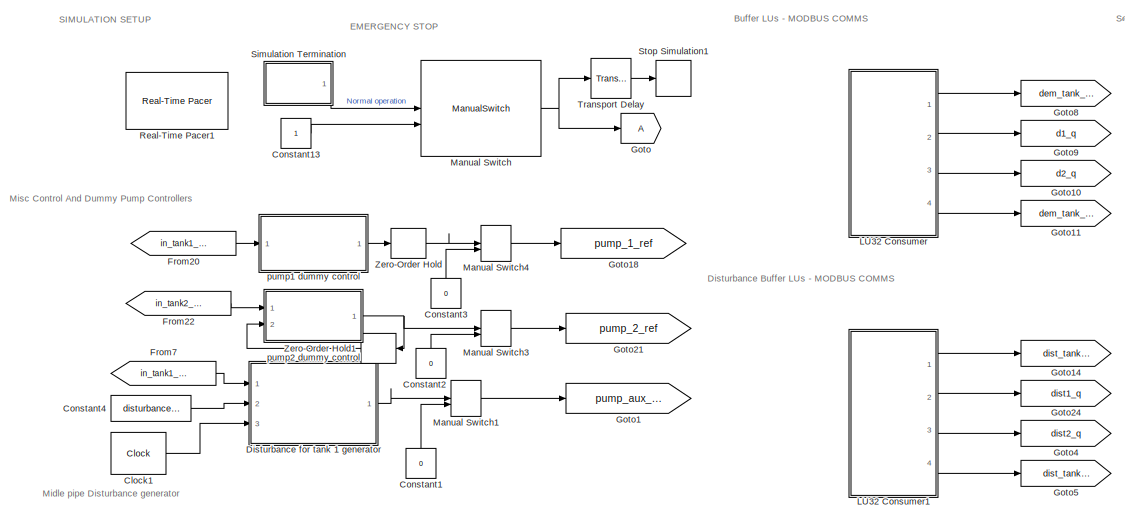
[diagram: root canvas - part 1/3, top center region]
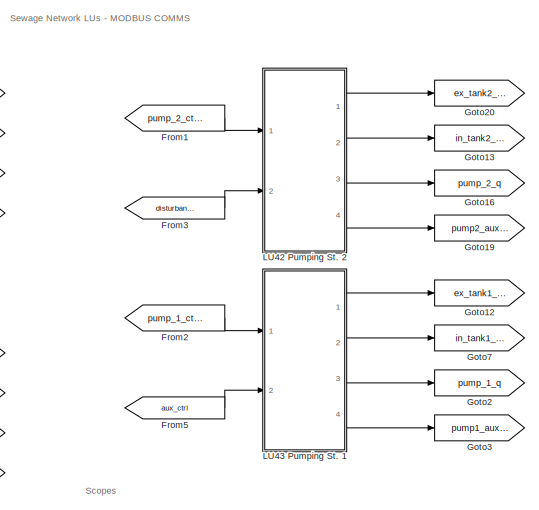
[diagram: root canvas - part 2/3, top right region]
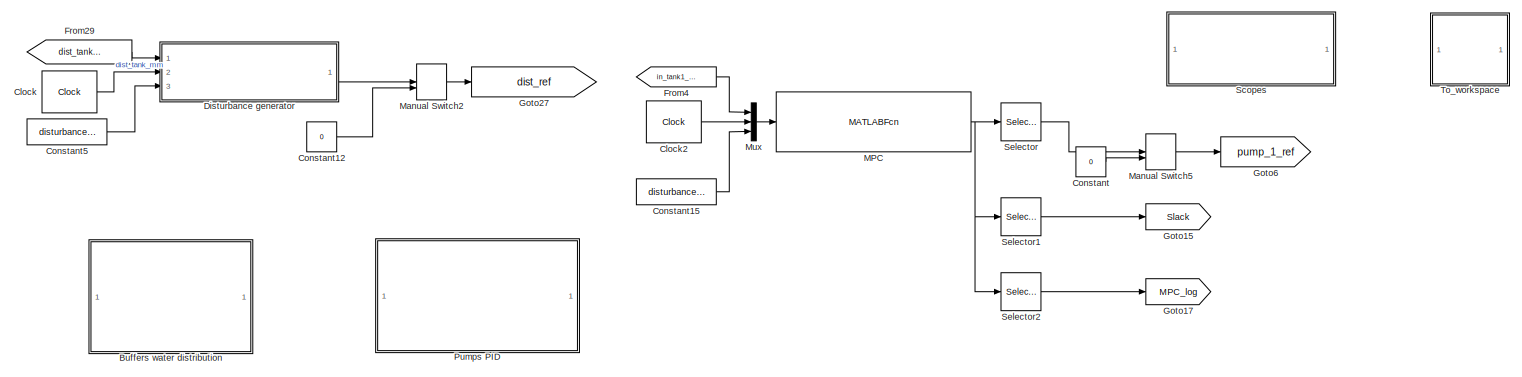
[diagram: root canvas - part 3/3, full width, bottom band]
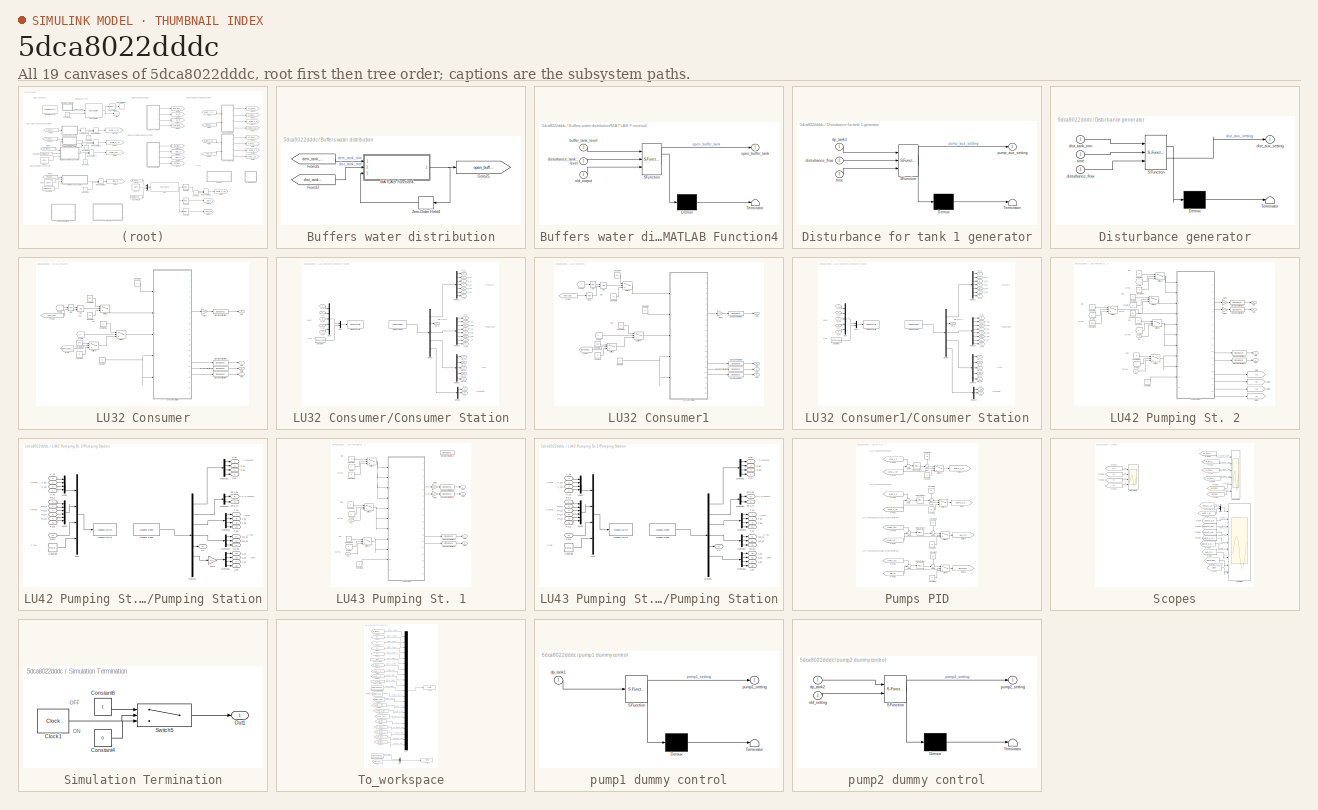
[diagram: thumbnail index - all 19 canvases of the model, root first then tree order]
MODEL slx_5dca8022dddc
KIND model
CONFIG AbsTol = auto
CONFIG EnableMultiTasking = off
CONFIG FixedStep = 1
CONFIG InitFcn = MPC_init
CONFIG MaxStep = auto
CONFIG MinStep = auto
CONFIG RelTol = 1e-3
CONFIG SampleTimeConstraint = Unconstrained
CONFIG Solver = FixedStepAuto
CONFIG SolverName = FixedStepAuto
CONFIG StartTime = 0.0
CONFIG StopTime = inf
BLOCK [SubSystem] Buffers water distribution
  Ports = []
  RequestExecContextInheritance = off
BLOCK [From] Buffers water distribution/From35
  GotoTag = dem_tank_mm
  TagVisibility = global
BLOCK [From] Buffers water distribution/From37
  GotoTag = dist_tank_mm
  TagVisibility = global
BLOCK [Goto] Buffers water distribution/Goto25
  GotoTag = open_buffer_tank
  TagVisibility = global
BLOCK [SubSystem] Buffers water distribution/MATLAB Function4
  ErrorFcn = Stateflow.Translate.translate
  PermitHierarchicalResolution = ExplicitOnly
  Ports = [3, 1]
  RequestExecContextInheritance = off
  SFBlockType = MATLAB Function
  TreatAsAtomicUnit = on
BLOCK [Demux] Buffers water distribution/MATLAB Function4/ Demux 
  Outputs = 1
  Ports = [1, 1]
BLOCK [S-Function] Buffers water distribution/MATLAB Function4/ SFunction 
  EnableBusSupport = on
  FunctionName = sf_sfun
  PortCounts = [3 2]
  Ports = [3, 2]
  SFcnIsStateOwnerBlock = off
  SFunctionDeploymentMode = off
  Tag = Stateflow S-Function 5
BLOCK [Terminator] Buffers water distribution/MATLAB Function4/ Terminator 
BLOCK [Inport] Buffers water distribution/MATLAB Function4/buffer_tank_level
BLOCK [Inport] Buffers water distribution/MATLAB Function4/disturbance_tank_level
  Port = 2
BLOCK [Inport] Buffers water distribution/MATLAB Function4/old_output
  Port = 3
BLOCK [Outport] Buffers water distribution/MATLAB Function4/open_buffer_tank
BLOCK [ZeroOrderHold] Buffers water distribution/Zero-Order Hold4
  SampleTime = 2
BLOCK [Clock] Clock
  Decimation = 4
  DisplayTime = on
BLOCK [Clock] Clock1
  Decimation = 4
  DisplayTime = on
BLOCK [Clock] Clock2
  Decimation = 4
  DisplayTime = on
BLOCK [Constant] Constant
  Value = 0
BLOCK [Constant] Constant1
  NameLocation = right
  Value = 0
BLOCK [Constant] Constant12
  Value = 0
BLOCK [Constant] Constant13
BLOCK [Constant] Constant15
  Value = disturbance_flow
BLOCK [Constant] Constant2
  NameLocation = right
  Value = 0
BLOCK [Constant] Constant3
  Commented = on
  NameLocation = right
  Value = 0
BLOCK [Constant] Constant4
  Value = disturbance_flow
BLOCK [Constant] Constant5
  Value = disturbance_flow
BLOCK [SubSystem] Disturbance for tank 1 generator
  ErrorFcn = Stateflow.Translate.translate
  PermitHierarchicalResolution = ExplicitOnly
  Ports = [3, 1]
  RequestExecContextInheritance = off
  SFBlockType = MATLAB Function
  TreatAsAtomicUnit = on
BLOCK [Demux] Disturbance for tank 1 generator/ Demux 
  Outputs = 1
  Ports = [1, 1]
BLOCK [S-Function] Disturbance for tank 1 generator/ SFunction 
  EnableBusSupport = on
  FunctionName = sf_sfun
  PortCounts = [3 2]
  Ports = [3, 2]
  SFcnIsStateOwnerBlock = off
  SFunctionDeploymentMode = off
  Tag = Stateflow S-Function 1
BLOCK [Terminator] Disturbance for tank 1 generator/ Terminator 
BLOCK [Inport] Disturbance for tank 1 generator/disturbance_flow
  Port = 2
BLOCK [Inport] Disturbance for tank 1 generator/dp_tank1
BLOCK [Outport] Disturbance for tank 1 generator/pump_aux_setting
BLOCK [Inport] Disturbance for tank 1 generator/time
  Port = 3
BLOCK [SubSystem] Disturbance generator
  ErrorFcn = Stateflow.Translate.translate
  PermitHierarchicalResolution = ExplicitOnly
  Ports = [3, 1]
  RequestExecContextInheritance = off
  SFBlockType = MATLAB Function
  TreatAsAtomicUnit = on
BLOCK [Demux] Disturbance generator/ Demux 
  Outputs = 1
  Ports = [1, 1]
BLOCK [S-Function] Disturbance generator/ SFunction 
  EnableBusSupport = on
  FunctionName = sf_sfun
  PortCounts = [3 2]
  Ports = [3, 2]
  SFcnIsStateOwnerBlock = off
  SFunctionDeploymentMode = off
  Tag = Stateflow S-Function 4
BLOCK [Terminator] Disturbance generator/ Terminator 
BLOCK [Outport] Disturbance generator/dist_aux_setting
BLOCK [Inport] Disturbance generator/dist_tank_mm
BLOCK [Inport] Disturbance generator/disturbance_flow
  Port = 3
BLOCK [Inport] Disturbance generator/time
  Port = 2
BLOCK [From] From1
  GotoTag = pump_2_ctrl
  NameLocation = top
  TagVisibility = global
BLOCK [From] From2
  GotoTag = pump_1_ctrl
  NameLocation = top
  TagVisibility = global
BLOCK [From] From20
  Commented = on
  GotoTag = in_tank1_mm
  TagVisibility = global
BLOCK [From] From22
  GotoTag = in_tank2_mm
  TagVisibility = global
BLOCK [From] From29
  GotoTag = dist_tank_mm
  TagVisibility = global
BLOCK [From] From3
  GotoTag = disturbance_ctrl
  NameLocation = top
  TagVisibility = global
BLOCK [From] From4
  GotoTag = in_tank1_mm
  TagVisibility = global
BLOCK [From] From5
  GotoTag = aux_ctrl
  NameLocation = top
  TagVisibility = global
BLOCK [From] From7
  GotoTag = in_tank1_mm
  TagVisibility = global
BLOCK [Goto] Goto
  TagVisibility = global
BLOCK [Goto] Goto1
  GotoTag = pump_aux_ref
  TagVisibility = global
BLOCK [Goto] Goto10
  GotoTag = d2_q
  TagVisibility = global
BLOCK [Goto] Goto11
  GotoTag = dem_tank_out_q
  TagVisibility = global
BLOCK [Goto] Goto12
  GotoTag = ex_tank1_mm
  TagVisibility = global
BLOCK [Goto] Goto13
  GotoTag = in_tank2_mm
  TagVisibility = global
BLOCK [Goto] Goto14
  GotoTag = dist_tank_mm
  TagVisibility = global
BLOCK [Goto] Goto15
  GotoTag = Slack
  TagVisibility = global
BLOCK [Goto] Goto16
  GotoTag = pump_2_q
  TagVisibility = global
BLOCK [Goto] Goto17
  GotoTag = MPC_log
  TagVisibility = global
BLOCK [Goto] Goto18
  Commented = on
  GotoTag = pump_1_ref
  TagVisibility = global
BLOCK [Goto] Goto19
  GotoTag = pump2_aux_q
  TagVisibility = global
BLOCK [Goto] Goto2
  GotoTag = pump_1_q
  TagVisibility = global
BLOCK [Goto] Goto20
  GotoTag = ex_tank2_mm
  TagVisibility = global
BLOCK [Goto] Goto21
  GotoTag = pump_2_ref
  TagVisibility = global
BLOCK [Goto] Goto24
  GotoTag = dist1_q
  TagVisibility = global
BLOCK [Goto] Goto27
  GotoTag = dist_ref
  TagVisibility = global
BLOCK [Goto] Goto3
  GotoTag = pump1_aux_q
  TagVisibility = global
BLOCK [Goto] Goto4
  GotoTag = dist2_q
  TagVisibility = global
BLOCK [Goto] Goto5
  GotoTag = dist_tank_out_q
  TagVisibility = global
BLOCK [Goto] Goto6
  GotoTag = pump_1_ref
  TagVisibility = global
BLOCK [Goto] Goto7
  GotoTag = in_tank1_mm
  TagVisibility = global
BLOCK [Goto] Goto8
  GotoTag = dem_tank_mm
  TagVisibility = global
BLOCK [Goto] Goto9
  GotoTag = d1_q
  TagVisibility = global
BLOCK [SubSystem] LU32 Consumer
  Ports = [0, 4]
  RequestExecContextInheritance = off
BLOCK [Logic] LU32 Consumer/AND
  AllPortsSameDT = off
  IconShape = distinctive
  OutDataTypeStr = boolean
  Ports = [2, 1]
BLOCK [Constant] LU32 Consumer/Constant
  Value = 0
BLOCK [Constant] LU32 Consumer/Constant1
  Value = 0
BLOCK [Constant] LU32 Consumer/Constant11
  Value = 0
BLOCK [Constant] LU32 Consumer/Constant2
  Value = 0
BLOCK [Constant] LU32 Consumer/Constant3
  Value = 100
BLOCK [Constant] LU32 Consumer/Constant4
  Value = 0
BLOCK [Constant] LU32 Consumer/Constant5
  Value = 100
BLOCK [SubSystem] LU32 Consumer/Consumer Station
  Ports = [5, 23]
  RequestExecContextInheritance = off
BLOCK [Outport] LU32 Consumer/Consumer Station/C_1
  Port = 22
  VectorParamsAs1DForOutWhenUnconnected = off
BLOCK [Outport] LU32 Consumer/Consumer Station/C_2
  Port = 23
  VectorParamsAs1DForOutWhenUnconnected = off
BLOCK [Constant] LU32 Consumer/Consumer Station/Constant
  Value = zeros(14,1)
BLOCK [Demux] LU32 Consumer/Consumer Station/Demux
  Outputs = [7 1 8 5 3]
  Ports = [1, 5]
BLOCK [Demux] LU32 Consumer/Consumer Station/Demux1
  Outputs = 7
  Ports = [1, 7]
BLOCK [Demux] LU32 Consumer/Consumer Station/Demux2
  Outputs = 8
  Ports = [1, 8]
BLOCK [Demux] LU32 Consumer/Consumer Station/Demux3
  Outputs = 5
  Ports = [1, 5]
BLOCK [Demux] LU32 Consumer/Consumer Station/Demux4
  Outputs = 3
  Ports = [1, 3]
BLOCK [Reference] LU32 Consumer/Consumer Station/Modbus Read  REF=modbusMatLib/Modbus Read
  Ports = [0, 1]
  SourceBlock = modbusMatLib/Modbus Read
  SourceType = Modbus Read
BLOCK [Reference] LU32 Consumer/Consumer Station/Modbus Write  REF=modbusMatLib/Modbus Write
  Ports = [1]
  SourceBlock = modbusMatLib/Modbus Write
  SourceType = Modbus Write
BLOCK [Mux] LU32 Consumer/Consumer Station/Mux
  DisplayOption = bar
  Inputs = 5
  Ports = [5, 1]
BLOCK [Mux] LU32 Consumer/Consumer Station/Mux1
  DisplayOption = bar
  Inputs = 2
  Ports = [2, 1]
BLOCK [Outport] LU32 Consumer/Consumer Station/P_11
  VectorParamsAs1DForOutWhenUnconnected = off
BLOCK [Outport] LU32 Consumer/Consumer Station/P_12
  Port = 2
  VectorParamsAs1DForOutWhenUnconnected = off
BLOCK [Outport] LU32 Consumer/Consumer Station/P_13
  Port = 3
  VectorParamsAs1DForOutWhenUnconnected = off
BLOCK [Outport] LU32 Consumer/Consumer Station/P_21
  Port = 4
  VectorParamsAs1DForOutWhenUnconnected = off
BLOCK [Outport] LU32 Consumer/Consumer Station/P_22
  Port = 5
  VectorParamsAs1DForOutWhenUnconnected = off
BLOCK [Outport] LU32 Consumer/Consumer Station/P_23
  Port = 6
  VectorParamsAs1DForOutWhenUnconnected = off
BLOCK [Outport] LU32 Consumer/Consumer Station/P_24
  Port = 7
  VectorParamsAs1DForOutWhenUnconnected = off
BLOCK [Outport] LU32 Consumer/Consumer Station/Q1_11
  Port = 17
  VectorParamsAs1DForOutWhenUnconnected = off
BLOCK [Outport] LU32 Consumer/Consumer Station/Q1_12
  Port = 18
  VectorParamsAs1DForOutWhenUnconnected = off
BLOCK [Outport] LU32 Consumer/Consumer Station/Q1_13
  Port = 19
  VectorParamsAs1DForOutWhenUnconnected = off
BLOCK [Outport] LU32 Consumer/Consumer Station/Q1_21
  Port = 20
  VectorParamsAs1DForOutWhenUnconnected = off
BLOCK [Outport] LU32 Consumer/Consumer Station/Q1_22
  Port = 21
  VectorParamsAs1DForOutWhenUnconnected = off
BLOCK [Outport] LU32 Consumer/Consumer Station/T_21
  Port = 9
  VectorParamsAs1DForOutWhenUnconnected = off
BLOCK [Outport] LU32 Consumer/Consumer Station/T_22
  Port = 10
  VectorParamsAs1DForOutWhenUnconnected = off
BLOCK [Outport] LU32 Consumer/Consumer Station/T_23
  Port = 11
  VectorParamsAs1DForOutWhenUnconnected = off
BLOCK [Outport] LU32 Consumer/Consumer Station/T_24
  Port = 12
  VectorParamsAs1DForOutWhenUnconnected = off
BLOCK [Outport] LU32 Consumer/Consumer Station/T_25
  Port = 13
  VectorParamsAs1DForOutWhenUnconnected = off
BLOCK [Outport] LU32 Consumer/Consumer Station/T_26
  Port = 14
  VectorParamsAs1DForOutWhenUnconnected = off
BLOCK [Outport] LU32 Consumer/Consumer Station/T_27
  Port = 15
  VectorParamsAs1DForOutWhenUnconnected = off
BLOCK [Outport] LU32 Consumer/Consumer Station/T_28
  Port = 16
  VectorParamsAs1DForOutWhenUnconnected = off
BLOCK [Inport] LU32 Consumer/Consumer Station/V_11
BLOCK [Inport] LU32 Consumer/Consumer Station/V_12
  Port = 2
BLOCK [Inport] LU32 Consumer/Consumer Station/V_13
  Port = 3
BLOCK [Inport] LU32 Consumer/Consumer Station/V_21
  Port = 4
BLOCK [Inport] LU32 Consumer/Consumer Station/V_22
  Port = 5
BLOCK [Outport] LU32 Consumer/Consumer Station/dP_2
  Port = 8
  VectorParamsAs1DForOutWhenUnconnected = off
BLOCK [From] LU32 Consumer/From
  GotoTag = pump_aux_ref
  TagVisibility = global
BLOCK [From] LU32 Consumer/From1
  TagVisibility = global
BLOCK [From] LU32 Consumer/From2
  GotoTag = open_buffer_tank
  TagVisibility = global
BLOCK [From] LU32 Consumer/From4
  TagVisibility = global
BLOCK [Gain] LU32 Consumer/Gain1
  Gain = 100
  NameLocation = top
BLOCK [Logic] LU32 Consumer/NOT
  AllPortsSameDT = off
  IconShape = distinctive
  Operator = NOT
  OutDataTypeStr = boolean
  Ports = [1, 1]
BLOCK [Outport] LU32 Consumer/Out1
  VectorParamsAs1DForOutWhenUnconnected = off
BLOCK [Outport] LU32 Consumer/Out2
  Port = 2
  VectorParamsAs1DForOutWhenUnconnected = off
BLOCK [Outport] LU32 Consumer/Out3
  Port = 3
  VectorParamsAs1DForOutWhenUnconnected = off
BLOCK [Outport] LU32 Consumer/Out4
  Port = 4
  VectorParamsAs1DForOutWhenUnconnected = off
BLOCK [SignalSpecification] LU32 Consumer/Signal Specification1
  Unit = mm
BLOCK [SignalSpecification] LU32 Consumer/Signal Specification5
  Unit = l/min
BLOCK [SignalSpecification] LU32 Consumer/Signal Specification6
  Unit = l/min
BLOCK [SignalSpecification] LU32 Consumer/Signal Specification7
  Unit = l/min
BLOCK [Switch] LU32 Consumer/Switch1
  Criteria = u2 ~= 0
  InputSameDT = off
  SaturateOnIntegerOverflow = off
BLOCK [Switch] LU32 Consumer/Switch2
  Criteria = u2 ~= 0
  InputSameDT = off
  SaturateOnIntegerOverflow = off
BLOCK [Switch] LU32 Consumer/Switch4
  Criteria = u2 ~= 0
  InputSameDT = off
  SaturateOnIntegerOverflow = off
BLOCK [SubSystem] LU32 Consumer1
  Ports = [0, 4]
  RequestExecContextInheritance = off
BLOCK [Logic] LU32 Consumer1/AND
  AllPortsSameDT = off
  IconShape = distinctive
  OutDataTypeStr = boolean
  Ports = [2, 1]
BLOCK [Constant] LU32 Consumer1/Constant
  Value = 0
BLOCK [Constant] LU32 Consumer1/Constant1
  Value = 0
BLOCK [Constant] LU32 Consumer1/Constant11
  Value = 0
BLOCK [Constant] LU32 Consumer1/Constant4
  Value = 0
BLOCK [Constant] LU32 Consumer1/Constant5
  Value = 100
BLOCK [Constant] LU32 Consumer1/Constant6
  Value = 0
BLOCK [Constant] LU32 Consumer1/Constant7
  Value = 100
BLOCK [SubSystem] LU32 Consumer1/Consumer Station
  Ports = [5, 23]
  RequestExecContextInheritance = off
BLOCK [Outport] LU32 Consumer1/Consumer Station/C_1
  Port = 22
  VectorParamsAs1DForOutWhenUnconnected = off
BLOCK [Outport] LU32 Consumer1/Consumer Station/C_2
  Port = 23
  VectorParamsAs1DForOutWhenUnconnected = off
BLOCK [Constant] LU32 Consumer1/Consumer Station/Constant
  Value = zeros(14,1)
BLOCK [Demux] LU32 Consumer1/Consumer Station/Demux
  Outputs = [7 1 8 5 3]
  Ports = [1, 5]
BLOCK [Demux] LU32 Consumer1/Consumer Station/Demux1
  Outputs = 7
  Ports = [1, 7]
BLOCK [Demux] LU32 Consumer1/Consumer Station/Demux2
  Outputs = 8
  Ports = [1, 8]
BLOCK [Demux] LU32 Consumer1/Consumer Station/Demux3
  Outputs = 5
  Ports = [1, 5]
BLOCK [Demux] LU32 Consumer1/Consumer Station/Demux4
  Outputs = 3
  Ports = [1, 3]
BLOCK [Reference] LU32 Consumer1/Consumer Station/Modbus Read  REF=modbusMatLib/Modbus Read
  Ports = [0, 1]
  SourceBlock = modbusMatLib/Modbus Read
  SourceType = Modbus Read
BLOCK [Reference] LU32 Consumer1/Consumer Station/Modbus Write  REF=modbusMatLib/Modbus Write
  Ports = [1]
  SourceBlock = modbusMatLib/Modbus Write
  SourceType = Modbus Write
BLOCK [Mux] LU32 Consumer1/Consumer Station/Mux
  DisplayOption = bar
  Inputs = 5
  Ports = [5, 1]
BLOCK [Mux] LU32 Consumer1/Consumer Station/Mux1
  DisplayOption = bar
  Inputs = 2
  Ports = [2, 1]
BLOCK [Outport] LU32 Consumer1/Consumer Station/P_11
  VectorParamsAs1DForOutWhenUnconnected = off
BLOCK [Outport] LU32 Consumer1/Consumer Station/P_12
  Port = 2
  VectorParamsAs1DForOutWhenUnconnected = off
BLOCK [Outport] LU32 Consumer1/Consumer Station/P_13
  Port = 3
  VectorParamsAs1DForOutWhenUnconnected = off
BLOCK [Outport] LU32 Consumer1/Consumer Station/P_21
  Port = 4
  VectorParamsAs1DForOutWhenUnconnected = off
BLOCK [Outport] LU32 Consumer1/Consumer Station/P_22
  Port = 5
  VectorParamsAs1DForOutWhenUnconnected = off
BLOCK [Outport] LU32 Consumer1/Consumer Station/P_23
  Port = 6
  VectorParamsAs1DForOutWhenUnconnected = off
BLOCK [Outport] LU32 Consumer1/Consumer Station/P_24
  Port = 7
  VectorParamsAs1DForOutWhenUnconnected = off
BLOCK [Outport] LU32 Consumer1/Consumer Station/Q1_11
  Port = 17
  VectorParamsAs1DForOutWhenUnconnected = off
BLOCK [Outport] LU32 Consumer1/Consumer Station/Q1_12
  Port = 18
  VectorParamsAs1DForOutWhenUnconnected = off
BLOCK [Outport] LU32 Consumer1/Consumer Station/Q1_13
  Port = 19
  VectorParamsAs1DForOutWhenUnconnected = off
BLOCK [Outport] LU32 Consumer1/Consumer Station/Q1_21
  Port = 20
  VectorParamsAs1DForOutWhenUnconnected = off
BLOCK [Outport] LU32 Consumer1/Consumer Station/Q1_22
  Port = 21
  VectorParamsAs1DForOutWhenUnconnected = off
BLOCK [Outport] LU32 Consumer1/Consumer Station/T_21
  Port = 9
  VectorParamsAs1DForOutWhenUnconnected = off
BLOCK [Outport] LU32 Consumer1/Consumer Station/T_22
  Port = 10
  VectorParamsAs1DForOutWhenUnconnected = off
BLOCK [Outport] LU32 Consumer1/Consumer Station/T_23
  Port = 11
  VectorParamsAs1DForOutWhenUnconnected = off
BLOCK [Outport] LU32 Consumer1/Consumer Station/T_24
  Port = 12
  VectorParamsAs1DForOutWhenUnconnected = off
BLOCK [Outport] LU32 Consumer1/Consumer Station/T_25
  Port = 13
  VectorParamsAs1DForOutWhenUnconnected = off
BLOCK [Outport] LU32 Consumer1/Consumer Station/T_26
  Port = 14
  VectorParamsAs1DForOutWhenUnconnected = off
BLOCK [Outport] LU32 Consumer1/Consumer Station/T_27
  Port = 15
  VectorParamsAs1DForOutWhenUnconnected = off
BLOCK [Outport] LU32 Consumer1/Consumer Station/T_28
  Port = 16
  VectorParamsAs1DForOutWhenUnconnected = off
BLOCK [Inport] LU32 Consumer1/Consumer Station/V_11
BLOCK [Inport] LU32 Consumer1/Consumer Station/V_12
  Port = 2
BLOCK [Inport] LU32 Consumer1/Consumer Station/V_13
  Port = 3
BLOCK [Inport] LU32 Consumer1/Consumer Station/V_21
  Port = 4
BLOCK [Inport] LU32 Consumer1/Consumer Station/V_22
  Port = 5
BLOCK [Outport] LU32 Consumer1/Consumer Station/dP_2
  Port = 8
  VectorParamsAs1DForOutWhenUnconnected = off
BLOCK [From] LU32 Consumer1/From
  GotoTag = disturbance_ctrl
  TagVisibility = global
BLOCK [From] LU32 Consumer1/From1
  GotoTag = open_buffer_tank
  TagVisibility = global
BLOCK [From] LU32 Consumer1/From2
  TagVisibility = global
BLOCK [From] LU32 Consumer1/From4
  TagVisibility = global
BLOCK [Gain] LU32 Consumer1/Gain1
  Gain = 100
  NameLocation = top
BLOCK [Logic] LU32 Consumer1/NOT
  AllPortsSameDT = off
  IconShape = distinctive
  Operator = NOT
  OutDataTypeStr = boolean
  Ports = [1, 1]
BLOCK [Logic] LU32 Consumer1/NOT1
  AllPortsSameDT = off
  IconShape = distinctive
  Operator = NOT
  OutDataTypeStr = boolean
  Ports = [1, 1]
BLOCK [Outport] LU32 Consumer1/Out1
  VectorParamsAs1DForOutWhenUnconnected = off
BLOCK [Outport] LU32 Consumer1/Out2
  Port = 2
  VectorParamsAs1DForOutWhenUnconnected = off
BLOCK [Outport] LU32 Consumer1/Out3
  Port = 3
  VectorParamsAs1DForOutWhenUnconnected = off
BLOCK [Outport] LU32 Consumer1/Out4
  Port = 4
  VectorParamsAs1DForOutWhenUnconnected = off
BLOCK [SignalSpecification] LU32 Consumer1/Signal Specification1
  Unit = mm
BLOCK [SignalSpecification] LU32 Consumer1/Signal Specification5
  Unit = l/min
BLOCK [SignalSpecification] LU32 Consumer1/Signal Specification6
  Unit = l/min
BLOCK [SignalSpecification] LU32 Consumer1/Signal Specification7
  Unit = l/min
BLOCK [Switch] LU32 Consumer1/Switch2
  Criteria = u2 ~= 0
  InputSameDT = off
  SaturateOnIntegerOverflow = off
BLOCK [Switch] LU32 Consumer1/Switch3
  Criteria = u2 ~= 0
  InputSameDT = off
  SaturateOnIntegerOverflow = off
BLOCK [Switch] LU32 Consumer1/Switch4
  Criteria = u2 ~= 0
  InputSameDT = off
  SaturateOnIntegerOverflow = off
BLOCK [SubSystem] LU42 Pumping St. 2
  NameLocation = top
  Ports = [2, 4]
  RequestExecContextInheritance = off
BLOCK [Constant] LU42 Pumping St. 2/Constant1
  Value = 0
BLOCK [Constant] LU42 Pumping St. 2/Constant10
  Value = 0
BLOCK [Constant] LU42 Pumping St. 2/Constant2
  Value = 50
BLOCK [Constant] LU42 Pumping St. 2/Constant3
  Value = 0
BLOCK [Constant] LU42 Pumping St. 2/Constant4
  Value = 100
BLOCK [Constant] LU42 Pumping St. 2/Constant5
  Value = 0
BLOCK [Constant] LU42 Pumping St. 2/Constant7
  Value = 0
BLOCK [Constant] LU42 Pumping St. 2/Constant8
  Value = 0
BLOCK [Constant] LU42 Pumping St. 2/Constant9
  Value = 0
BLOCK [From] LU42 Pumping St. 2/From
  TagVisibility = global
BLOCK [From] LU42 Pumping St. 2/From1
  TagVisibility = global
BLOCK [From] LU42 Pumping St. 2/From2
  TagVisibility = global
BLOCK [From] LU42 Pumping St. 2/From3
  TagVisibility = global
BLOCK [From] LU42 Pumping St. 2/From4
  TagVisibility = global
BLOCK [Gain] LU42 Pumping St. 2/Gain1
  Gain = 100
  NameLocation = top
BLOCK [Gain] LU42 Pumping St. 2/Gain2
  Gain = 100
  NameLocation = top
BLOCK [Goto] LU42 Pumping St. 2/Goto
  GotoTag = h1
  TagVisibility = global
BLOCK [Goto] LU42 Pumping St. 2/Goto1
  GotoTag = h2
  TagVisibility = global
BLOCK [Goto] LU42 Pumping St. 2/Goto2
  GotoTag = h3
  TagVisibility = global
BLOCK [Goto] LU42 Pumping St. 2/Goto3
  GotoTag = h4
  TagVisibility = global
BLOCK [Inport] LU42 Pumping St. 2/In1
BLOCK [Inport] LU42 Pumping St. 2/In2
  Port = 2
BLOCK [Outport] LU42 Pumping St. 2/Out1
  Port = 2
  VectorParamsAs1DForOutWhenUnconnected = off
BLOCK [Outport] LU42 Pumping St. 2/Out2
  VectorParamsAs1DForOutWhenUnconnected = off
BLOCK [Outport] LU42 Pumping St. 2/Out3
  Port = 3
  VectorParamsAs1DForOutWhenUnconnected = off
BLOCK [Outport] LU42 Pumping St. 2/Out4
  Port = 4
  VectorParamsAs1DForOutWhenUnconnected = off
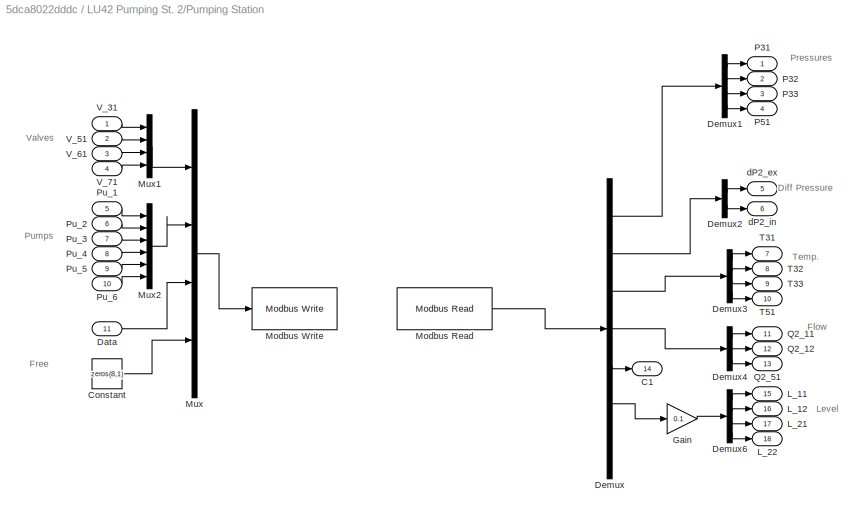
BLOCK [SubSystem] LU42 Pumping St. 2/Pumping Station
  Ports = [11, 18]
  RequestExecContextInheritance = off
BLOCK [Outport] LU42 Pumping St. 2/Pumping Station/C1
  Port = 14
  VectorParamsAs1DForOutWhenUnconnected = off
BLOCK [Constant] LU42 Pumping St. 2/Pumping Station/Constant
  Value = zeros(8,1)
BLOCK [Inport] LU42 Pumping St. 2/Pumping Station/Data
  Port = 11
BLOCK [Demux] LU42 Pumping St. 2/Pumping Station/Demux
  Outputs = [4 2 4 3 1 4 6]
  Ports = [1, 7]
BLOCK [Demux] LU42 Pumping St. 2/Pumping Station/Demux1
  Ports = [1, 4]
BLOCK [Demux] LU42 Pumping St. 2/Pumping Station/Demux2
  Outputs = 2
  Ports = [1, 2]
BLOCK [Demux] LU42 Pumping St. 2/Pumping Station/Demux3
  Ports = [1, 4]
BLOCK [Demux] LU42 Pumping St. 2/Pumping Station/Demux4
  Outputs = 3
  Ports = [1, 3]
BLOCK [Demux] LU42 Pumping St. 2/Pumping Station/Demux6
  Ports = [1, 4]
BLOCK [Gain] LU42 Pumping St. 2/Pumping Station/Gain
  Gain = 0.1
BLOCK [Outport] LU42 Pumping St. 2/Pumping Station/L_11
  Port = 15
  VectorParamsAs1DForOutWhenUnconnected = off
BLOCK [Outport] LU42 Pumping St. 2/Pumping Station/L_12
  Port = 16
  VectorParamsAs1DForOutWhenUnconnected = off
BLOCK [Outport] LU42 Pumping St. 2/Pumping Station/L_21
  Port = 17
  VectorParamsAs1DForOutWhenUnconnected = off
BLOCK [Outport] LU42 Pumping St. 2/Pumping Station/L_22
  Port = 18
  VectorParamsAs1DForOutWhenUnconnected = off
BLOCK [Reference] LU42 Pumping St. 2/Pumping Station/Modbus Read  REF=modbusMatLib/Modbus Read
  Ports = [0, 1]
  SourceBlock = modbusMatLib/Modbus Read
  SourceType = Modbus Read
BLOCK [Reference] LU42 Pumping St. 2/Pumping Station/Modbus Write  REF=modbusMatLib/Modbus Write
  Ports = [1]
  SourceBlock = modbusMatLib/Modbus Write
  SourceType = Modbus Write
BLOCK [Mux] LU42 Pumping St. 2/Pumping Station/Mux
  DisplayOption = bar
  Ports = [4, 1]
BLOCK [Mux] LU42 Pumping St. 2/Pumping Station/Mux1
  DisplayOption = bar
  Ports = [4, 1]
BLOCK [Mux] LU42 Pumping St. 2/Pumping Station/Mux2
  DisplayOption = bar
  Inputs = 6
  Ports = [6, 1]
BLOCK [Outport] LU42 Pumping St. 2/Pumping Station/P31
  VectorParamsAs1DForOutWhenUnconnected = off
BLOCK [Outport] LU42 Pumping St. 2/Pumping Station/P32
  Port = 2
  VectorParamsAs1DForOutWhenUnconnected = off
BLOCK [Outport] LU42 Pumping St. 2/Pumping Station/P33
  Port = 3
  VectorParamsAs1DForOutWhenUnconnected = off
BLOCK [Outport] LU42 Pumping St. 2/Pumping Station/P51
  Port = 4
  VectorParamsAs1DForOutWhenUnconnected = off
BLOCK [Inport] LU42 Pumping St. 2/Pumping Station/Pu_1
  Port = 5
BLOCK [Inport] LU42 Pumping St. 2/Pumping Station/Pu_2
  Port = 6
BLOCK [Inport] LU42 Pumping St. 2/Pumping Station/Pu_3
  Port = 7
BLOCK [Inport] LU42 Pumping St. 2/Pumping Station/Pu_4
  Port = 8
BLOCK [Inport] LU42 Pumping St. 2/Pumping Station/Pu_5
  Port = 9
BLOCK [Inport] LU42 Pumping St. 2/Pumping Station/Pu_6
  Port = 10
BLOCK [Outport] LU42 Pumping St. 2/Pumping Station/Q2_11
  Port = 11
  VectorParamsAs1DForOutWhenUnconnected = off
BLOCK [Outport] LU42 Pumping St. 2/Pumping Station/Q2_12
  Port = 12
  VectorParamsAs1DForOutWhenUnconnected = off
BLOCK [Outport] LU42 Pumping St. 2/Pumping Station/Q2_51
  Port = 13
  VectorParamsAs1DForOutWhenUnconnected = off
BLOCK [Outport] LU42 Pumping St. 2/Pumping Station/T31
  Port = 7
  VectorParamsAs1DForOutWhenUnconnected = off
BLOCK [Outport] LU42 Pumping St. 2/Pumping Station/T32
  Port = 8
  VectorParamsAs1DForOutWhenUnconnected = off
BLOCK [Outport] LU42 Pumping St. 2/Pumping Station/T33
  Port = 9
  VectorParamsAs1DForOutWhenUnconnected = off
BLOCK [Outport] LU42 Pumping St. 2/Pumping Station/T51
  Port = 10
  VectorParamsAs1DForOutWhenUnconnected = off
BLOCK [Inport] LU42 Pumping St. 2/Pumping Station/V_31
BLOCK [Inport] LU42 Pumping St. 2/Pumping Station/V_51
  Port = 2
BLOCK [Inport] LU42 Pumping St. 2/Pumping Station/V_61
  Port = 3
BLOCK [Inport] LU42 Pumping St. 2/Pumping Station/V_71
  Port = 4
BLOCK [Outport] LU42 Pumping St. 2/Pumping Station/dP2_ex
  Port = 5
  VectorParamsAs1DForOutWhenUnconnected = off
BLOCK [Outport] LU42 Pumping St. 2/Pumping Station/dP2_in
  Port = 6
  VectorParamsAs1DForOutWhenUnconnected = off
BLOCK [SignalSpecification] LU42 Pumping St. 2/Signal Specification1
  Unit = l/min
BLOCK [SignalSpecification] LU42 Pumping St. 2/Signal Specification2
  Unit = l/min
BLOCK [SignalSpecification] LU42 Pumping St. 2/Signal Specification3
  Unit = mm
BLOCK [SignalSpecification] LU42 Pumping St. 2/Signal Specification4
  Unit = mm
BLOCK [Switch] LU42 Pumping St. 2/Switch1
  Criteria = u2 ~= 0
  InputSameDT = off
  SaturateOnIntegerOverflow = off
BLOCK [Switch] LU42 Pumping St. 2/Switch2
  Criteria = u2 ~= 0
  InputSameDT = off
  SaturateOnIntegerOverflow = off
BLOCK [Switch] LU42 Pumping St. 2/Switch3
  Criteria = u2 ~= 0
  InputSameDT = off
  SaturateOnIntegerOverflow = off
BLOCK [Switch] LU42 Pumping St. 2/Switch4
  Criteria = u2 ~= 0
  InputSameDT = off
  SaturateOnIntegerOverflow = off
BLOCK [Switch] LU42 Pumping St. 2/Switch5
  Criteria = u2 ~= 0
  InputSameDT = off
  SaturateOnIntegerOverflow = off
BLOCK [SubSystem] LU43 Pumping St. 1
  NameLocation = top
  Ports = [2, 4]
  RequestExecContextInheritance = off
BLOCK [Constant] LU43 Pumping St. 1/Constant10
  Value = 0
BLOCK [Constant] LU43 Pumping St. 1/Constant5
  Value = 0
BLOCK [Constant] LU43 Pumping St. 1/Constant7
  Value = 0
BLOCK [Constant] LU43 Pumping St. 1/Constant8
  Value = 0
BLOCK [Constant] LU43 Pumping St. 1/Constant9
  Value = 0
BLOCK [From] LU43 Pumping St. 1/From
  TagVisibility = global
BLOCK [From] LU43 Pumping St. 1/From1
  TagVisibility = global
BLOCK [From] LU43 Pumping St. 1/From2
  TagVisibility = global
BLOCK [Gain] LU43 Pumping St. 1/Gain1
  Gain = 100
  NameLocation = top
BLOCK [Gain] LU43 Pumping St. 1/Gain2
  Gain = 100
  NameLocation = top
BLOCK [Inport] LU43 Pumping St. 1/In1
BLOCK [Inport] LU43 Pumping St. 1/In2
  Port = 2
BLOCK [Outport] LU43 Pumping St. 1/Out2
  VectorParamsAs1DForOutWhenUnconnected = off
BLOCK [Outport] LU43 Pumping St. 1/Out3
  Port = 3
  VectorParamsAs1DForOutWhenUnconnected = off
BLOCK [Outport] LU43 Pumping St. 1/Out4
  Port = 4
  VectorParamsAs1DForOutWhenUnconnected = off
BLOCK [Outport] LU43 Pumping St. 1/Out5
  Port = 2
  VectorParamsAs1DForOutWhenUnconnected = off
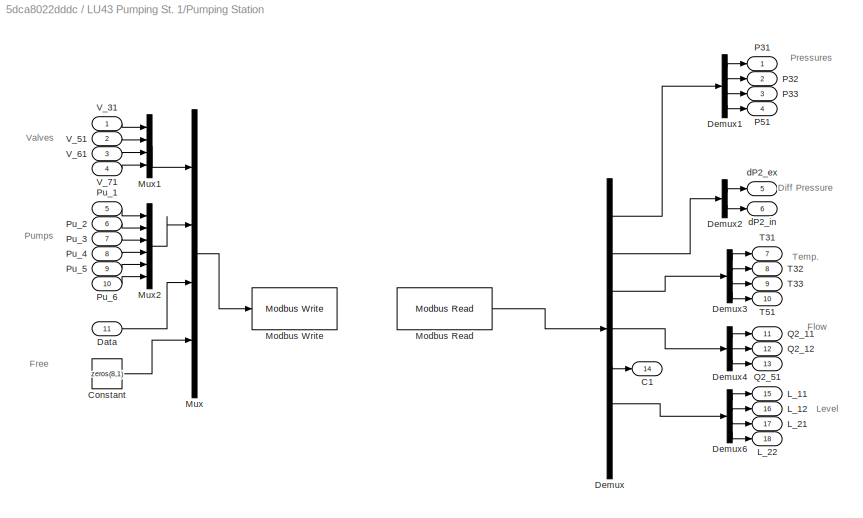
BLOCK [SubSystem] LU43 Pumping St. 1/Pumping Station
  Ports = [11, 18]
  RequestExecContextInheritance = off
BLOCK [Outport] LU43 Pumping St. 1/Pumping Station/C1
  Port = 14
  VectorParamsAs1DForOutWhenUnconnected = off
BLOCK [Constant] LU43 Pumping St. 1/Pumping Station/Constant
  Value = zeros(8,1)
BLOCK [Inport] LU43 Pumping St. 1/Pumping Station/Data
  Port = 11
BLOCK [Demux] LU43 Pumping St. 1/Pumping Station/Demux
  Outputs = [4 2 4 3 1 4 6]
  Ports = [1, 7]
BLOCK [Demux] LU43 Pumping St. 1/Pumping Station/Demux1
  Ports = [1, 4]
BLOCK [Demux] LU43 Pumping St. 1/Pumping Station/Demux2
  Outputs = 2
  Ports = [1, 2]
BLOCK [Demux] LU43 Pumping St. 1/Pumping Station/Demux3
  Ports = [1, 4]
BLOCK [Demux] LU43 Pumping St. 1/Pumping Station/Demux4
  Outputs = 3
  Ports = [1, 3]
BLOCK [Demux] LU43 Pumping St. 1/Pumping Station/Demux6
  Ports = [1, 4]
BLOCK [Outport] LU43 Pumping St. 1/Pumping Station/L_11
  Port = 15
  VectorParamsAs1DForOutWhenUnconnected = off
BLOCK [Outport] LU43 Pumping St. 1/Pumping Station/L_12
  Port = 16
  VectorParamsAs1DForOutWhenUnconnected = off
BLOCK [Outport] LU43 Pumping St. 1/Pumping Station/L_21
  Port = 17
  VectorParamsAs1DForOutWhenUnconnected = off
BLOCK [Outport] LU43 Pumping St. 1/Pumping Station/L_22
  Port = 18
  VectorParamsAs1DForOutWhenUnconnected = off
BLOCK [Reference] LU43 Pumping St. 1/Pumping Station/Modbus Read  REF=modbusMatLib/Modbus Read
  Ports = [0, 1]
  SourceBlock = modbusMatLib/Modbus Read
  SourceType = Modbus Read
BLOCK [Reference] LU43 Pumping St. 1/Pumping Station/Modbus Write  REF=modbusMatLib/Modbus Write
  Ports = [1]
  SourceBlock = modbusMatLib/Modbus Write
  SourceType = Modbus Write
BLOCK [Mux] LU43 Pumping St. 1/Pumping Station/Mux
  DisplayOption = bar
  Ports = [4, 1]
BLOCK [Mux] LU43 Pumping St. 1/Pumping Station/Mux1
  DisplayOption = bar
  Ports = [4, 1]
BLOCK [Mux] LU43 Pumping St. 1/Pumping Station/Mux2
  DisplayOption = bar
  Inputs = 6
  Ports = [6, 1]
BLOCK [Outport] LU43 Pumping St. 1/Pumping Station/P31
  VectorParamsAs1DForOutWhenUnconnected = off
BLOCK [Outport] LU43 Pumping St. 1/Pumping Station/P32
  Port = 2
  VectorParamsAs1DForOutWhenUnconnected = off
BLOCK [Outport] LU43 Pumping St. 1/Pumping Station/P33
  Port = 3
  VectorParamsAs1DForOutWhenUnconnected = off
BLOCK [Outport] LU43 Pumping St. 1/Pumping Station/P51
  Port = 4
  VectorParamsAs1DForOutWhenUnconnected = off
BLOCK [Inport] LU43 Pumping St. 1/Pumping Station/Pu_1
  Port = 5
BLOCK [Inport] LU43 Pumping St. 1/Pumping Station/Pu_2
  Port = 6
BLOCK [Inport] LU43 Pumping St. 1/Pumping Station/Pu_3
  Port = 7
BLOCK [Inport] LU43 Pumping St. 1/Pumping Station/Pu_4
  Port = 8
BLOCK [Inport] LU43 Pumping St. 1/Pumping Station/Pu_5
  Port = 9
BLOCK [Inport] LU43 Pumping St. 1/Pumping Station/Pu_6
  Port = 10
BLOCK [Outport] LU43 Pumping St. 1/Pumping Station/Q2_11
  Port = 11
  VectorParamsAs1DForOutWhenUnconnected = off
BLOCK [Outport] LU43 Pumping St. 1/Pumping Station/Q2_12
  Port = 12
  VectorParamsAs1DForOutWhenUnconnected = off
BLOCK [Outport] LU43 Pumping St. 1/Pumping Station/Q2_51
  Port = 13
  VectorParamsAs1DForOutWhenUnconnected = off
BLOCK [Outport] LU43 Pumping St. 1/Pumping Station/T31
  Port = 7
  VectorParamsAs1DForOutWhenUnconnected = off
BLOCK [Outport] LU43 Pumping St. 1/Pumping Station/T32
  Port = 8
  VectorParamsAs1DForOutWhenUnconnected = off
BLOCK [Outport] LU43 Pumping St. 1/Pumping Station/T33
  Port = 9
  VectorParamsAs1DForOutWhenUnconnected = off
BLOCK [Outport] LU43 Pumping St. 1/Pumping Station/T51
  Port = 10
  VectorParamsAs1DForOutWhenUnconnected = off
BLOCK [Inport] LU43 Pumping St. 1/Pumping Station/V_31
BLOCK [Inport] LU43 Pumping St. 1/Pumping Station/V_51
  Port = 2
BLOCK [Inport] LU43 Pumping St. 1/Pumping Station/V_61
  Port = 3
BLOCK [Inport] LU43 Pumping St. 1/Pumping Station/V_71
  Port = 4
BLOCK [Outport] LU43 Pumping St. 1/Pumping Station/dP2_ex
  Port = 5
  VectorParamsAs1DForOutWhenUnconnected = off
BLOCK [Outport] LU43 Pumping St. 1/Pumping Station/dP2_in
  Port = 6
  VectorParamsAs1DForOutWhenUnconnected = off
BLOCK [SignalSpecification] LU43 Pumping St. 1/Signal Specification1
  Unit = l/min
BLOCK [SignalSpecification] LU43 Pumping St. 1/Signal Specification2
  Unit = l/min
BLOCK [SignalSpecification] LU43 Pumping St. 1/Signal Specification3
  Unit = mm
BLOCK [SignalSpecification] LU43 Pumping St. 1/Signal Specification5
  Unit = mm
BLOCK [SignalSpecification] LU43 Pumping St. 1/Signal Specification6
  Commented = on
  Unit = bar
BLOCK [Switch] LU43 Pumping St. 1/Switch1
  Criteria = u2 ~= 0
  InputSameDT = off
  SaturateOnIntegerOverflow = off
BLOCK [Switch] LU43 Pumping St. 1/Switch2
  Criteria = u2 ~= 0
  InputSameDT = off
  SaturateOnIntegerOverflow = off
BLOCK [Switch] LU43 Pumping St. 1/Switch3
  Criteria = u2 ~= 0
  InputSameDT = off
  SaturateOnIntegerOverflow = off
BLOCK [MATLABFcn] MPC
  MATLABFcn = MPC_tank1(u(1),u(2),u(3:end))
  OutputDimensions = 50
  OutputSignalType = real
  Ports = [1, 1]
  SampleTime = 20
BLOCK [ManualSwitch] Manual Switch
BLOCK [ManualSwitch] Manual Switch1
BLOCK [ManualSwitch] Manual Switch2
  CurrentSetting = 0
BLOCK [ManualSwitch] Manual Switch3
  CurrentSetting = 0
BLOCK [ManualSwitch] Manual Switch4
  Commented = on
BLOCK [ManualSwitch] Manual Switch5
BLOCK [Mux] Mux
  DisplayOption = bar
  Inputs = 3
  Ports = [3, 1]
BLOCK [SubSystem] Pumps PID
  Ports = []
  RequestExecContextInheritance = off
BLOCK [Constant] Pumps PID/Constant
  Value = 0
BLOCK [Constant] Pumps PID/Constant1
  Value = 0
BLOCK [Constant] Pumps PID/Constant11
  NameLocation = left
  Value = 45
BLOCK [Constant] Pumps PID/Constant2
  Value = 0
BLOCK [Constant] Pumps PID/Constant3
  NameLocation = left
  Value = 54
BLOCK [Constant] Pumps PID/Constant5
  Value = 0
BLOCK [Constant] Pumps PID/Constant7
  NameLocation = left
  Value = 50
BLOCK [Constant] Pumps PID/Constant9
  NameLocation = left
  Value = 47
BLOCK [From] Pumps PID/From11
  GotoTag = pump_2_ref
  TagVisibility = global
BLOCK [From] Pumps PID/From14
  GotoTag = pump_1_q
  TagVisibility = global
BLOCK [From] Pumps PID/From26
  GotoTag = pump1_aux_q
  TagVisibility = global
BLOCK [From] Pumps PID/From27
  GotoTag = pump_aux_ref
  TagVisibility = global
BLOCK [From] Pumps PID/From31
  GotoTag = pump2_aux_q
  TagVisibility = global
BLOCK [From] Pumps PID/From32
  GotoTag = dist_ref
  TagVisibility = global
BLOCK [From] Pumps PID/From36
  GotoTag = pump_1_ref
  TagVisibility = global
BLOCK [From] Pumps PID/From8
  GotoTag = pump_2_q
  TagVisibility = global
BLOCK [Goto] Pumps PID/Goto22
  GotoTag = pump_1_ctrl
  TagVisibility = global
BLOCK [Goto] Pumps PID/Goto23
  GotoTag = aux_ctrl
  TagVisibility = global
BLOCK [Goto] Pumps PID/Goto26
  GotoTag = disturbance_ctrl
  TagVisibility = global
BLOCK [Goto] Pumps PID/Goto6
  GotoTag = pump_2_ctrl
  TagVisibility = global
BLOCK [Reference] Pumps PID/PID Controller1  REF=simulink/Continuous/PID Controller
  Ports = [1, 1]
  SourceBlock = simulink/Continuous/PID Controller
  SourceProductBaseCode = SL
  SourceType = PID 1dof
BLOCK [Reference] Pumps PID/PID Controller2  REF=simulink/Continuous/PID Controller
  Ports = [1, 1]
  SourceBlock = simulink/Continuous/PID Controller
  SourceProductBaseCode = SL
  SourceType = PID 1dof
BLOCK [Reference] Pumps PID/PID Controller3  REF=simulink/Continuous/PID Controller
  Ports = [1, 1]
  SourceBlock = simulink/Continuous/PID Controller
  SourceProductBaseCode = SL
  SourceType = PID 1dof
BLOCK [Reference] Pumps PID/PID Controller4  REF=simulink/Continuous/PID Controller
  Ports = [1, 1]
  SourceBlock = simulink/Continuous/PID Controller
  SourceProductBaseCode = SL
  SourceType = PID 1dof
BLOCK [Sum] Pumps PID/Sum
  Inputs = ++|
  Ports = [2, 1]
BLOCK [Sum] Pumps PID/Sum1
  Inputs = -+|
  Ports = [2, 1]
BLOCK [Sum] Pumps PID/Sum2
  Inputs = ++|
  Ports = [2, 1]
BLOCK [Sum] Pumps PID/Sum3
  Inputs = ++|
  Ports = [2, 1]
BLOCK [Sum] Pumps PID/Sum4
  Inputs = -+|
  Ports = [2, 1]
BLOCK [Sum] Pumps PID/Sum5
  Inputs = -+|
  Ports = [2, 1]
BLOCK [Sum] Pumps PID/Sum6
  Inputs = ++|
  Ports = [2, 1]
BLOCK [Sum] Pumps PID/Sum7
  Inputs = -+|
  Ports = [2, 1]
BLOCK [Switch] Pumps PID/Switch1
  Criteria = u2 ~= 0
  InputSameDT = off
  SaturateOnIntegerOverflow = off
BLOCK [Switch] Pumps PID/Switch2
  Criteria = u2 ~= 0
  InputSameDT = off
  SaturateOnIntegerOverflow = off
BLOCK [Switch] Pumps PID/Switch3
  Criteria = u2 ~= 0
  InputSameDT = off
  SaturateOnIntegerOverflow = off
BLOCK [Switch] Pumps PID/Switch4
  Criteria = u2 ~= 0
  InputSameDT = off
  SaturateOnIntegerOverflow = off
BLOCK [Reference] Real-Time Pacer1  REF=realtime_pacer_lib/Real-Time Pacer
  Ports = []
  SourceBlock = realtime_pacer_lib/Real-Time Pacer
  SourceType = RealTime_Pacer
BLOCK [SubSystem] Scopes
  Ports = []
  RequestExecContextInheritance = off
BLOCK [From] Scopes/From
  GotoTag = pump_1_q
  TagVisibility = global
BLOCK [From] Scopes/From1
  GotoTag = pump_1_ref
  TagVisibility = global
BLOCK [From] Scopes/From10
  GotoTag = in_tank1_mm
  TagVisibility = global
BLOCK [From] Scopes/From12
  GotoTag = ex_tank2_mm
  TagVisibility = global
BLOCK [From] Scopes/From13
  GotoTag = in_tank2_mm
  TagVisibility = global
BLOCK [From] Scopes/From15
  GotoTag = h4
  TagVisibility = global
BLOCK [From] Scopes/From16
  GotoTag = h3
  TagVisibility = global
BLOCK [From] Scopes/From17
  GotoTag = h1
  TagVisibility = global
BLOCK [From] Scopes/From18
  GotoTag = h2
  TagVisibility = global
BLOCK [From] Scopes/From2
  GotoTag = Slack
  TagVisibility = global
BLOCK [From] Scopes/From21
  GotoTag = pump1_aux_q
  TagVisibility = global
BLOCK [From] Scopes/From23
  GotoTag = dem_tank_mm
  TagVisibility = global
BLOCK [From] Scopes/From24
  GotoTag = pump_1_ctrl
  TagVisibility = global
BLOCK [From] Scopes/From25
  GotoTag = pump_2_ctrl
  TagVisibility = global
BLOCK [From] Scopes/From28
  GotoTag = disturbance_ctrl
  TagVisibility = global
BLOCK [From] Scopes/From30
  GotoTag = dist_tank_mm
  TagVisibility = global
BLOCK [From] Scopes/From34
  GotoTag = pump2_aux_q
  TagVisibility = global
BLOCK [From] Scopes/From4
  GotoTag = ex_tank1_mm
  TagVisibility = global
BLOCK [From] Scopes/From6
  GotoTag = pump_2_q
  TagVisibility = global
BLOCK [From] Scopes/From9
  GotoTag = aux_ctrl
  TagVisibility = global
BLOCK [Mux] Scopes/Mux
  DisplayOption = bar
  Inputs = 2
  Ports = [2, 1]
BLOCK [Scope] Scopes/Pipe heights
  Floating = off
  NumInputPorts = 4
  Ports = [4]
  ScopeSpecificationString = Simulink.scopes.TimeScopeBlockCfg('CurrentConfiguration', extmgr.ConfigurationSet(extmgr.Configuration('Core','General UI',true),extmgr.Configuration('Core','Source UI',true),extmgr.Configuration('Sources','WiredSimulink',true,'DataLoggingVariableName','ScopeData1','DataLoggingLimitDataPoints',true),extmgr.Configuration('Visuals','Time Domain',true,'SerializedDisplays',{struct('MinYLimReal','0','M...<+3597ch>
BLOCK [Scope] Scopes/Pump flows
  Floating = off
  NumInputPorts = 9
  Ports = [9]
  ScopeSpecificationString = Simulink.scopes.TimeScopeBlockCfg('CurrentConfiguration', extmgr.ConfigurationSet(extmgr.Configuration('Core','General UI',true),extmgr.Configuration('Core','Source UI',true),extmgr.Configuration('Sources','WiredSimulink',true,'DataLoggingVariableName','ScopeData2','DataLoggingLimitDataPoints',true),extmgr.Configuration('Visuals','Time Domain',true,'SerializedDisplays',{struct('MinYLimReal','2.883...<+9203ch>
BLOCK [Scope] Scopes/Tank depths
  Floating = off
  NumInputPorts = 6
  Ports = [6]
  ScopeSpecificationString = Simulink.scopes.TimeScopeBlockCfg('CurrentConfiguration', extmgr.ConfigurationSet(extmgr.Configuration('Core','General UI',true),extmgr.Configuration('Core','Source UI',true),extmgr.Configuration('Sources','WiredSimulink',true,'DataLoggingLimitDataPoints',true),extmgr.Configuration('Visuals','Time Domain',true,'SerializedDisplays',{struct('MinYLimReal','-12.00000','MaxYLimReal','750','YLabelReal',...<+6706ch>
BLOCK [Selector] Selector
  IndexOptions = Index vector (dialog)
  Indices = 1
  InputPortWidth = 50
  OutputSizes = 1
  Ports = [1, 1]
BLOCK [Selector] Selector1
  IndexOptions = Index vector (dialog)
  Indices = 2
  InputPortWidth = 50
  OutputSizes = 1
  Ports = [1, 1]
BLOCK [Selector] Selector2
  IndexOptions = Index vector (dialog)
  Indices = [3:50]
  InputPortWidth = 50
  OutputSizes = 1
  Ports = [1, 1]
BLOCK [SubSystem] Simulation Termination
  Ports = [0, 1]
  RequestExecContextInheritance = off
BLOCK [Clock] Simulation Termination/Clock1
  Decimation = 4
  DisplayTime = on
BLOCK [Constant] Simulation Termination/Constant4
  Value = 0
BLOCK [Constant] Simulation Termination/Constant6
BLOCK [Outport] Simulation Termination/Out1
BLOCK [Switch] Simulation Termination/Switch5
  Criteria = u2 > Threshold
  InputSameDT = off
  SaturateOnIntegerOverflow = off
  Threshold = 40000
BLOCK [Stop] Stop Simulation1
BLOCK [SubSystem] To_workspace
  Ports = []
  RequestExecContextInheritance = off
BLOCK [Reference] To_workspace/Elapsed Real Time  REF=realtime_pacer_lib/Elapsed Real Time
  Ports = [0, 1]
  SourceBlock = realtime_pacer_lib/Elapsed Real Time
  SourceType = RealTime_Elapsed
BLOCK [Reference] To_workspace/Elapsed Real Time1  REF=realtime_pacer_lib/Elapsed Real Time
  Ports = [0, 1]
  SourceBlock = realtime_pacer_lib/Elapsed Real Time
  SourceType = RealTime_Elapsed
BLOCK [From] To_workspace/From
  GotoTag = pump_1_q
  TagVisibility = global
BLOCK [From] To_workspace/From1
  GotoTag = dist_ref
  TagVisibility = global
BLOCK [From] To_workspace/From10
  GotoTag = pump_2_q
  TagVisibility = global
BLOCK [From] To_workspace/From11
  GotoTag = pump_2_ref
  TagVisibility = global
BLOCK [From] To_workspace/From13
  GotoTag = in_tank2_mm
  TagVisibility = global
BLOCK [From] To_workspace/From15
  GotoTag = h4
  TagVisibility = global
BLOCK [From] To_workspace/From16
  GotoTag = h3
  TagVisibility = global
BLOCK [From] To_workspace/From17
  GotoTag = h1
  TagVisibility = global
BLOCK [From] To_workspace/From18
  GotoTag = h2
  TagVisibility = global
BLOCK [From] To_workspace/From2
  GotoTag = MPC_log
  TagVisibility = global
BLOCK [From] To_workspace/From21
  GotoTag = pump1_aux_q
  TagVisibility = global
BLOCK [From] To_workspace/From27
  GotoTag = pump_aux_ref
  TagVisibility = global
BLOCK [From] To_workspace/From3
  GotoTag = in_tank1_mm
  TagVisibility = global
BLOCK [From] To_workspace/From30
  GotoTag = dist_tank_mm
  TagVisibility = global
BLOCK [From] To_workspace/From34
  GotoTag = pump2_aux_q
  TagVisibility = global
BLOCK [From] To_workspace/From36
  GotoTag = pump_1_ref
  TagVisibility = global
BLOCK [From] To_workspace/From5
  GotoTag = ex_tank2_mm
  TagVisibility = global
BLOCK [From] To_workspace/From7
  GotoTag = dem_tank_mm
  TagVisibility = global
BLOCK [From] To_workspace/From8
  GotoTag = ex_tank1_mm
  TagVisibility = global
BLOCK [Mux] To_workspace/Mux
  DisplayOption = bar
  Inputs = 2
  Ports = [2, 1]
BLOCK [Mux] To_workspace/Mux3
  DisplayOption = bar
  Inputs = 21
  Ports = [21, 1]
BLOCK [Constant] To_workspace/Tank2_Inflow
  Value = NaN
BLOCK [ToFile] To_workspace/To File
  Filename = Experiment_data_deterministic_MPC
  Ports = [1]
  SaveFormat = Timeseries
BLOCK [ToFile] To_workspace/To File1
  Filename = MPC_log
  Ports = [1]
  SaveFormat = Timeseries
BLOCK [Constant] To_workspace/tank2_area
  Value = 125^2*pi
BLOCK [TransportDelay] Transport Delay
  DelayTime = 2
  Ports = [1, 1]
BLOCK [ZeroOrderHold] Zero-Order Hold
  Commented = on
  SampleTime = 60
BLOCK [ZeroOrderHold] Zero-Order Hold1
  SampleTime = 2
BLOCK [SubSystem] pump1 dummy control
  Commented = on
  ErrorFcn = Stateflow.Translate.translate
  PermitHierarchicalResolution = ExplicitOnly
  Ports = [1, 1]
  RequestExecContextInheritance = off
  SFBlockType = MATLAB Function
  TreatAsAtomicUnit = on
BLOCK [Demux] pump1 dummy control/ Demux 
  Outputs = 1
  Ports = [1, 1]
BLOCK [S-Function] pump1 dummy control/ SFunction 
  EnableBusSupport = on
  FunctionName = sf_sfun
  PortCounts = [1 2]
  Ports = [1, 2]
  SFcnIsStateOwnerBlock = off
  SFunctionDeploymentMode = off
  Tag = Stateflow S-Function 3
BLOCK [Terminator] pump1 dummy control/ Terminator 
BLOCK [Inport] pump1 dummy control/dp_tank1
BLOCK [Outport] pump1 dummy control/pump1_setting
BLOCK [SubSystem] pump2 dummy control
  ErrorFcn = Stateflow.Translate.translate
  PermitHierarchicalResolution = ExplicitOnly
  Ports = [2, 1]
  RequestExecContextInheritance = off
  SFBlockType = MATLAB Function
  TreatAsAtomicUnit = on
BLOCK [Demux] pump2 dummy control/ Demux 
  Outputs = 1
  Ports = [1, 1]
BLOCK [S-Function] pump2 dummy control/ SFunction 
  EnableBusSupport = on
  FunctionName = sf_sfun
  PortCounts = [2 2]
  Ports = [2, 2]
  SFcnIsStateOwnerBlock = off
  SFunctionDeploymentMode = off
  Tag = Stateflow S-Function 2
BLOCK [Terminator] pump2 dummy control/ Terminator 
BLOCK [Inport] pump2 dummy control/dp_tank2
BLOCK [Inport] pump2 dummy control/old_setting
  Port = 2
BLOCK [Outport] pump2 dummy control/pump2_setting
ANNOTATION (root): EMERGENCY STOP
ANNOTATION (root): Buffer LUs - MODBUS COMMS
ANNOTATION (root): Disturbance Buffer LUs - MODBUS COMMS
ANNOTATION (root): Midle pipe Disturbance generator
ANNOTATION (root): Misc Control And Dummy Pump Controllers
ANNOTATION (root): SIMULATION SETUP
ANNOTATION (root): Scopes
ANNOTATION (root): Sewage Network LUs - MODBUS COMMS
ANNOTATION LU32 Consumer: Stop
ANNOTATION LU32 Consumer/Consumer Station: Conductivity
ANNOTATION LU32 Consumer/Consumer Station: Diff. Pressure
ANNOTATION LU32 Consumer/Consumer Station: FLow
ANNOTATION LU32 Consumer/Consumer Station: Free
ANNOTATION LU32 Consumer/Consumer Station: Pressure
ANNOTATION LU32 Consumer/Consumer Station: Temperature
ANNOTATION LU32 Consumer/Consumer Station: Valves
ANNOTATION LU32 Consumer1: Stop
ANNOTATION LU32 Consumer1/Consumer Station: Conductivity
ANNOTATION LU32 Consumer1/Consumer Station: Diff. Pressure
ANNOTATION LU32 Consumer1/Consumer Station: FLow
ANNOTATION LU32 Consumer1/Consumer Station: Free
ANNOTATION LU32 Consumer1/Consumer Station: Pressure
ANNOTATION LU32 Consumer1/Consumer Station: Temperature
ANNOTATION LU32 Consumer1/Consumer Station: Valves
ANNOTATION LU42 Pumping St. 2: Normal
ANNOTATION LU42 Pumping St. 2: Stop
ANNOTATION LU42 Pumping St. 2/Pumping Station: Diff Pressure
ANNOTATION LU42 Pumping St. 2/Pumping Station: Flow
ANNOTATION LU42 Pumping St. 2/Pumping Station: Free
ANNOTATION LU42 Pumping St. 2/Pumping Station: Level
ANNOTATION LU42 Pumping St. 2/Pumping Station: Pressures
ANNOTATION LU42 Pumping St. 2/Pumping Station: Pumps
ANNOTATION LU42 Pumping St. 2/Pumping Station: Temp.
ANNOTATION LU42 Pumping St. 2/Pumping Station: Valves
ANNOTATION LU43 Pumping St. 1: Normal
ANNOTATION LU43 Pumping St. 1: Stop
ANNOTATION LU43 Pumping St. 1/Pumping Station: Diff Pressure
ANNOTATION LU43 Pumping St. 1/Pumping Station: Flow
ANNOTATION LU43 Pumping St. 1/Pumping Station: Free
ANNOTATION LU43 Pumping St. 1/Pumping Station: Level
ANNOTATION LU43 Pumping St. 1/Pumping Station: Pressures
ANNOTATION LU43 Pumping St. 1/Pumping Station: Pumps
ANNOTATION LU43 Pumping St. 1/Pumping Station: Temp.
ANNOTATION LU43 Pumping St. 1/Pumping Station: Valves
ANNOTATION Pumps PID: LU 42- Pump Flow Control Pump2
ANNOTATION Pumps PID: LU 43- Pump Flow Control Auxiliary pump from buffer tank
ANNOTATION Pumps PID: LU 43- Pump Flow Control Pump1
ANNOTATION Simulation Termination: ON
ANNOTATION Simulation Termination: OFF
LINE Buffers water distribution/From35:1 -> Buffers water distribution/MATLAB Function4:1
LINE Buffers water distribution/From37:1 -> Buffers water distribution/MATLAB Function4:2
NET Buffers water distribution/MATLAB Function4:1 -> Buffers water distribution/Goto25:1, Buffers water distribution/Zero-Order Hold4:1
LINE Buffers water distribution/Zero-Order Hold4:1 -> Buffers water distribution/MATLAB Function4:3
LINE Clock1:1 -> Disturbance for tank 1 generator:3
LINE Clock2:1 -> Mux:2
LINE Clock:1 -> Disturbance generator:2
LINE Constant12:1 -> Manual Switch2:2
LINE Constant13:1 -> Manual Switch:2
LINE Constant15:1 -> Mux:3
LINE Constant1:1 -> Manual Switch1:2
LINE Constant2:1 -> Manual Switch3:2
LINE Constant3:1 -> Manual Switch4:2
LINE Constant4:1 -> Disturbance for tank 1 generator:2
LINE Constant5:1 -> Disturbance generator:3
LINE Constant:1 -> Manual Switch5:2
LINE Disturbance for tank 1 generator:1 -> Manual Switch1:1
LINE Disturbance generator:1 -> Manual Switch2:1
LINE From1:1 -> LU42 Pumping St. 2:1
LINE From20:1 -> pump1 dummy control:1
LINE From22:1 -> pump2 dummy control:1
LINE From29:1 -> Disturbance generator:1
LINE From2:1 -> LU43 Pumping St. 1:1
LINE From3:1 -> LU42 Pumping St. 2:2
LINE From4:1 -> Mux:1
LINE From5:1 -> LU43 Pumping St. 1:2
LINE From7:1 -> Disturbance for tank 1 generator:1
LINE LU32 Consumer/AND:1 -> LU32 Consumer/Switch1:2
LINE LU32 Consumer/Constant11:1 -> LU32 Consumer/Switch4:1
LINE LU32 Consumer/Constant1:1 -> LU32 Consumer/Switch1:3
LINE LU32 Consumer/Constant2:1 -> LU32 Consumer/Consumer Station:1
LINE LU32 Consumer/Constant3:1 -> LU32 Consumer/Switch1:1
LINE LU32 Consumer/Constant4:1 -> LU32 Consumer/Switch2:3
LINE LU32 Consumer/Constant5:1 -> LU32 Consumer/Switch2:1
NET LU32 Consumer/Constant:1 -> LU32 Consumer/Consumer Station:4, LU32 Consumer/Consumer Station:5
LINE LU32 Consumer/Consumer Station/Constant:1 -> LU32 Consumer/Consumer Station/Mux1:2
LINE LU32 Consumer/Consumer Station/Demux1:1 -> LU32 Consumer/Consumer Station/P_11:1
LINE LU32 Consumer/Consumer Station/Demux1:2 -> LU32 Consumer/Consumer Station/P_12:1
LINE LU32 Consumer/Consumer Station/Demux1:3 -> LU32 Consumer/Consumer Station/P_13:1
LINE LU32 Consumer/Consumer Station/Demux1:4 -> LU32 Consumer/Consumer Station/P_21:1
LINE LU32 Consumer/Consumer Station/Demux1:5 -> LU32 Consumer/Consumer Station/P_22:1
LINE LU32 Consumer/Consumer Station/Demux1:6 -> LU32 Consumer/Consumer Station/P_23:1
LINE LU32 Consumer/Consumer Station/Demux1:7 -> LU32 Consumer/Consumer Station/P_24:1
LINE LU32 Consumer/Consumer Station/Demux2:1 -> LU32 Consumer/Consumer Station/T_21:1
LINE LU32 Consumer/Consumer Station/Demux2:2 -> LU32 Consumer/Consumer Station/T_22:1
LINE LU32 Consumer/Consumer Station/Demux2:3 -> LU32 Consumer/Consumer Station/T_23:1
LINE LU32 Consumer/Consumer Station/Demux2:4 -> LU32 Consumer/Consumer Station/T_24:1
LINE LU32 Consumer/Consumer Station/Demux2:5 -> LU32 Consumer/Consumer Station/T_25:1
LINE LU32 Consumer/Consumer Station/Demux2:6 -> LU32 Consumer/Consumer Station/T_26:1
LINE LU32 Consumer/Consumer Station/Demux2:7 -> LU32 Consumer/Consumer Station/T_27:1
LINE LU32 Consumer/Consumer Station/Demux2:8 -> LU32 Consumer/Consumer Station/T_28:1
LINE LU32 Consumer/Consumer Station/Demux3:1 -> LU32 Consumer/Consumer Station/Q1_11:1
LINE LU32 Consumer/Consumer Station/Demux3:2 -> LU32 Consumer/Consumer Station/Q1_12:1
LINE LU32 Consumer/Consumer Station/Demux3:3 -> LU32 Consumer/Consumer Station/Q1_13:1
LINE LU32 Consumer/Consumer Station/Demux3:4 -> LU32 Consumer/Consumer Station/Q1_21:1
LINE LU32 Consumer/Consumer Station/Demux3:5 -> LU32 Consumer/Consumer Station/Q1_22:1
LINE LU32 Consumer/Consumer Station/Demux4:1 -> LU32 Consumer/Consumer Station/C_1:1
LINE LU32 Consumer/Consumer Station/Demux4:2 -> LU32 Consumer/Consumer Station/C_2:1
LINE LU32 Consumer/Consumer Station/Demux:1 -> LU32 Consumer/Consumer Station/Demux1:1
LINE LU32 Consumer/Consumer Station/Demux:2 -> LU32 Consumer/Consumer Station/dP_2:1
LINE LU32 Consumer/Consumer Station/Demux:3 -> LU32 Consumer/Consumer Station/Demux2:1
LINE LU32 Consumer/Consumer Station/Demux:4 -> LU32 Consumer/Consumer Station/Demux3:1
LINE LU32 Consumer/Consumer Station/Demux:5 -> LU32 Consumer/Consumer Station/Demux4:1
LINE LU32 Consumer/Consumer Station/Modbus Read:1 -> LU32 Consumer/Consumer Station/Demux:1
LINE LU32 Consumer/Consumer Station/Mux1:1 -> LU32 Consumer/Consumer Station/Modbus Write:1
LINE LU32 Consumer/Consumer Station/Mux:1 -> LU32 Consumer/Consumer Station/Mux1:1
LINE LU32 Consumer/Consumer Station/V_11:1 -> LU32 Consumer/Consumer Station/Mux:1
LINE LU32 Consumer/Consumer Station/V_12:1 -> LU32 Consumer/Consumer Station/Mux:2
LINE LU32 Consumer/Consumer Station/V_13:1 -> LU32 Consumer/Consumer Station/Mux:3
LINE LU32 Consumer/Consumer Station/V_21:1 -> LU32 Consumer/Consumer Station/Mux:4
LINE LU32 Consumer/Consumer Station/V_22:1 -> LU32 Consumer/Consumer Station/Mux:5
LINE LU32 Consumer/Consumer Station:17 -> LU32 Consumer/Signal Specification5:1
LINE LU32 Consumer/Consumer Station:18 -> LU32 Consumer/Signal Specification6:1
LINE LU32 Consumer/Consumer Station:19 -> LU32 Consumer/Signal Specification7:1
LINE LU32 Consumer/Consumer Station:8 -> LU32 Consumer/Gain1:1
LINE LU32 Consumer/From1:1 -> LU32 Consumer/NOT:1
LINE LU32 Consumer/From2:1 -> LU32 Consumer/AND:2
LINE LU32 Consumer/From4:1 -> LU32 Consumer/Switch4:2
LINE LU32 Consumer/From:1 -> LU32 Consumer/Switch2:2
LINE LU32 Consumer/Gain1:1 -> LU32 Consumer/Signal Specification1:1
LINE LU32 Consumer/NOT:1 -> LU32 Consumer/AND:1
LINE LU32 Consumer/Signal Specification1:1 -> LU32 Consumer/Out1:1
LINE LU32 Consumer/Signal Specification5:1 -> LU32 Consumer/Out2:1
LINE LU32 Consumer/Signal Specification6:1 -> LU32 Consumer/Out3:1
LINE LU32 Consumer/Signal Specification7:1 -> LU32 Consumer/Out4:1
LINE LU32 Consumer/Switch1:1 -> LU32 Consumer/Consumer Station:2
LINE LU32 Consumer/Switch2:1 -> LU32 Consumer/Switch4:3
LINE LU32 Consumer/Switch4:1 -> LU32 Consumer/Consumer Station:3
LINE LU32 Consumer1/AND:1 -> LU32 Consumer1/Switch3:2
LINE LU32 Consumer1/Constant11:1 -> LU32 Consumer1/Switch4:1
LINE LU32 Consumer1/Constant1:1 -> LU32 Consumer1/Consumer Station:2
LINE LU32 Consumer1/Constant4:1 -> LU32 Consumer1/Switch2:3
LINE LU32 Consumer1/Constant5:1 -> LU32 Consumer1/Switch2:1
LINE LU32 Consumer1/Constant6:1 -> LU32 Consumer1/Switch3:3
LINE LU32 Consumer1/Constant7:1 -> LU32 Consumer1/Switch3:1
NET LU32 Consumer1/Constant:1 -> LU32 Consumer1/Consumer Station:4, LU32 Consumer1/Consumer Station:5
LINE LU32 Consumer1/Consumer Station/Constant:1 -> LU32 Consumer1/Consumer Station/Mux1:2
LINE LU32 Consumer1/Consumer Station/Demux1:1 -> LU32 Consumer1/Consumer Station/P_11:1
LINE LU32 Consumer1/Consumer Station/Demux1:2 -> LU32 Consumer1/Consumer Station/P_12:1
LINE LU32 Consumer1/Consumer Station/Demux1:3 -> LU32 Consumer1/Consumer Station/P_13:1
LINE LU32 Consumer1/Consumer Station/Demux1:4 -> LU32 Consumer1/Consumer Station/P_21:1
LINE LU32 Consumer1/Consumer Station/Demux1:5 -> LU32 Consumer1/Consumer Station/P_22:1
LINE LU32 Consumer1/Consumer Station/Demux1:6 -> LU32 Consumer1/Consumer Station/P_23:1
LINE LU32 Consumer1/Consumer Station/Demux1:7 -> LU32 Consumer1/Consumer Station/P_24:1
LINE LU32 Consumer1/Consumer Station/Demux2:1 -> LU32 Consumer1/Consumer Station/T_21:1
LINE LU32 Consumer1/Consumer Station/Demux2:2 -> LU32 Consumer1/Consumer Station/T_22:1
LINE LU32 Consumer1/Consumer Station/Demux2:3 -> LU32 Consumer1/Consumer Station/T_23:1
LINE LU32 Consumer1/Consumer Station/Demux2:4 -> LU32 Consumer1/Consumer Station/T_24:1
LINE LU32 Consumer1/Consumer Station/Demux2:5 -> LU32 Consumer1/Consumer Station/T_25:1
LINE LU32 Consumer1/Consumer Station/Demux2:6 -> LU32 Consumer1/Consumer Station/T_26:1
LINE LU32 Consumer1/Consumer Station/Demux2:7 -> LU32 Consumer1/Consumer Station/T_27:1
LINE LU32 Consumer1/Consumer Station/Demux2:8 -> LU32 Consumer1/Consumer Station/T_28:1
LINE LU32 Consumer1/Consumer Station/Demux3:1 -> LU32 Consumer1/Consumer Station/Q1_11:1
LINE LU32 Consumer1/Consumer Station/Demux3:2 -> LU32 Consumer1/Consumer Station/Q1_12:1
LINE LU32 Consumer1/Consumer Station/Demux3:3 -> LU32 Consumer1/Consumer Station/Q1_13:1
LINE LU32 Consumer1/Consumer Station/Demux3:4 -> LU32 Consumer1/Consumer Station/Q1_21:1
LINE LU32 Consumer1/Consumer Station/Demux3:5 -> LU32 Consumer1/Consumer Station/Q1_22:1
LINE LU32 Consumer1/Consumer Station/Demux4:1 -> LU32 Consumer1/Consumer Station/C_1:1
LINE LU32 Consumer1/Consumer Station/Demux4:2 -> LU32 Consumer1/Consumer Station/C_2:1
LINE LU32 Consumer1/Consumer Station/Demux:1 -> LU32 Consumer1/Consumer Station/Demux1:1
LINE LU32 Consumer1/Consumer Station/Demux:2 -> LU32 Consumer1/Consumer Station/dP_2:1
LINE LU32 Consumer1/Consumer Station/Demux:3 -> LU32 Consumer1/Consumer Station/Demux2:1
LINE LU32 Consumer1/Consumer Station/Demux:4 -> LU32 Consumer1/Consumer Station/Demux3:1
LINE LU32 Consumer1/Consumer Station/Demux:5 -> LU32 Consumer1/Consumer Station/Demux4:1
LINE LU32 Consumer1/Consumer Station/Modbus Read:1 -> LU32 Consumer1/Consumer Station/Demux:1
LINE LU32 Consumer1/Consumer Station/Mux1:1 -> LU32 Consumer1/Consumer Station/Modbus Write:1
LINE LU32 Consumer1/Consumer Station/Mux:1 -> LU32 Consumer1/Consumer Station/Mux1:1
LINE LU32 Consumer1/Consumer Station/V_11:1 -> LU32 Consumer1/Consumer Station/Mux:1
LINE LU32 Consumer1/Consumer Station/V_12:1 -> LU32 Consumer1/Consumer Station/Mux:2
LINE LU32 Consumer1/Consumer Station/V_13:1 -> LU32 Consumer1/Consumer Station/Mux:3
LINE LU32 Consumer1/Consumer Station/V_21:1 -> LU32 Consumer1/Consumer Station/Mux:4
LINE LU32 Consumer1/Consumer Station/V_22:1 -> LU32 Consumer1/Consumer Station/Mux:5
LINE LU32 Consumer1/Consumer Station:17 -> LU32 Consumer1/Signal Specification5:1
LINE LU32 Consumer1/Consumer Station:18 -> LU32 Consumer1/Signal Specification6:1
LINE LU32 Consumer1/Consumer Station:19 -> LU32 Consumer1/Signal Specification7:1
LINE LU32 Consumer1/Consumer Station:8 -> LU32 Consumer1/Gain1:1
LINE LU32 Consumer1/From1:1 -> LU32 Consumer1/NOT1:1
LINE LU32 Consumer1/From2:1 -> LU32 Consumer1/NOT:1
LINE LU32 Consumer1/From4:1 -> LU32 Consumer1/Switch4:2
LINE LU32 Consumer1/From:1 -> LU32 Consumer1/Switch2:2
LINE LU32 Consumer1/Gain1:1 -> LU32 Consumer1/Signal Specification1:1
LINE LU32 Consumer1/NOT1:1 -> LU32 Consumer1/AND:2
LINE LU32 Consumer1/NOT:1 -> LU32 Consumer1/AND:1
LINE LU32 Consumer1/Signal Specification1:1 -> LU32 Consumer1/Out1:1
LINE LU32 Consumer1/Signal Specification5:1 -> LU32 Consumer1/Out2:1
LINE LU32 Consumer1/Signal Specification6:1 -> LU32 Consumer1/Out3:1
LINE LU32 Consumer1/Signal Specification7:1 -> LU32 Consumer1/Out4:1
LINE LU32 Consumer1/Switch2:1 -> LU32 Consumer1/Switch4:3
LINE LU32 Consumer1/Switch3:1 -> LU32 Consumer1/Consumer Station:1
LINE LU32 Consumer1/Switch4:1 -> LU32 Consumer1/Consumer Station:3
LINE LU32 Consumer1:1 -> Goto14:1
LINE LU32 Consumer1:2 -> Goto24:1
LINE LU32 Consumer1:3 -> Goto4:1
LINE LU32 Consumer1:4 -> Goto5:1
LINE LU32 Consumer:1 -> Goto8:1
LINE LU32 Consumer:2 -> Goto9:1
LINE LU32 Consumer:3 -> Goto10:1
LINE LU32 Consumer:4 -> Goto11:1
LINE LU42 Pumping St. 2/Constant10:1 -> LU42 Pumping St. 2/Switch3:1
LINE LU42 Pumping St. 2/Constant1:1 -> LU42 Pumping St. 2/Switch4:1
LINE LU42 Pumping St. 2/Constant2:1 -> LU42 Pumping St. 2/Switch4:3
LINE LU42 Pumping St. 2/Constant3:1 -> LU42 Pumping St. 2/Switch5:1
LINE LU42 Pumping St. 2/Constant4:1 -> LU42 Pumping St. 2/Switch5:3
LINE LU42 Pumping St. 2/Constant5:1 -> LU42 Pumping St. 2/Pumping Station:10
LINE LU42 Pumping St. 2/Constant7:1 -> LU42 Pumping St. 2/Switch1:1
LINE LU42 Pumping St. 2/Constant8:1 -> LU42 Pumping St. 2/Switch1:3
LINE LU42 Pumping St. 2/Constant9:1 -> LU42 Pumping St. 2/Switch2:1
LINE LU42 Pumping St. 2/From1:1 -> LU42 Pumping St. 2/Switch2:2
LINE LU42 Pumping St. 2/From2:1 -> LU42 Pumping St. 2/Switch3:2
LINE LU42 Pumping St. 2/From3:1 -> LU42 Pumping St. 2/Switch4:2
LINE LU42 Pumping St. 2/From4:1 -> LU42 Pumping St. 2/Switch5:2
LINE LU42 Pumping St. 2/From:1 -> LU42 Pumping St. 2/Switch1:2
LINE LU42 Pumping St. 2/Gain1:1 -> LU42 Pumping St. 2/Signal Specification4:1
LINE LU42 Pumping St. 2/Gain2:1 -> LU42 Pumping St. 2/Signal Specification3:1
LINE LU42 Pumping St. 2/In1:1 -> LU42 Pumping St. 2/Switch2:3
LINE LU42 Pumping St. 2/In2:1 -> LU42 Pumping St. 2/Switch3:3
LINE LU42 Pumping St. 2/Pumping Station/Constant:1 -> LU42 Pumping St. 2/Pumping Station/Mux:4
LINE LU42 Pumping St. 2/Pumping Station/Data:1 -> LU42 Pumping St. 2/Pumping Station/Mux:3
LINE LU42 Pumping St. 2/Pumping Station/Demux1:1 -> LU42 Pumping St. 2/Pumping Station/P31:1
LINE LU42 Pumping St. 2/Pumping Station/Demux1:2 -> LU42 Pumping St. 2/Pumping Station/P32:1
LINE LU42 Pumping St. 2/Pumping Station/Demux1:3 -> LU42 Pumping St. 2/Pumping Station/P33:1
LINE LU42 Pumping St. 2/Pumping Station/Demux1:4 -> LU42 Pumping St. 2/Pumping Station/P51:1
LINE LU42 Pumping St. 2/Pumping Station/Demux2:1 -> LU42 Pumping St. 2/Pumping Station/dP2_ex:1
LINE LU42 Pumping St. 2/Pumping Station/Demux2:2 -> LU42 Pumping St. 2/Pumping Station/dP2_in:1
LINE LU42 Pumping St. 2/Pumping Station/Demux3:1 -> LU42 Pumping St. 2/Pumping Station/T31:1
LINE LU42 Pumping St. 2/Pumping Station/Demux3:2 -> LU42 Pumping St. 2/Pumping Station/T32:1
LINE LU42 Pumping St. 2/Pumping Station/Demux3:3 -> LU42 Pumping St. 2/Pumping Station/T33:1
LINE LU42 Pumping St. 2/Pumping Station/Demux3:4 -> LU42 Pumping St. 2/Pumping Station/T51:1
LINE LU42 Pumping St. 2/Pumping Station/Demux4:1 -> LU42 Pumping St. 2/Pumping Station/Q2_11:1
LINE LU42 Pumping St. 2/Pumping Station/Demux4:2 -> LU42 Pumping St. 2/Pumping Station/Q2_12:1
LINE LU42 Pumping St. 2/Pumping Station/Demux4:3 -> LU42 Pumping St. 2/Pumping Station/Q2_51:1
LINE LU42 Pumping St. 2/Pumping Station/Demux6:1 -> LU42 Pumping St. 2/Pumping Station/L_11:1
LINE LU42 Pumping St. 2/Pumping Station/Demux6:2 -> LU42 Pumping St. 2/Pumping Station/L_12:1
LINE LU42 Pumping St. 2/Pumping Station/Demux6:3 -> LU42 Pumping St. 2/Pumping Station/L_21:1
LINE LU42 Pumping St. 2/Pumping Station/Demux6:4 -> LU42 Pumping St. 2/Pumping Station/L_22:1
LINE LU42 Pumping St. 2/Pumping Station/Demux:1 -> LU42 Pumping St. 2/Pumping Station/Demux1:1
LINE LU42 Pumping St. 2/Pumping Station/Demux:2 -> LU42 Pumping St. 2/Pumping Station/Demux2:1
LINE LU42 Pumping St. 2/Pumping Station/Demux:3 -> LU42 Pumping St. 2/Pumping Station/Demux3:1
LINE LU42 Pumping St. 2/Pumping Station/Demux:4 -> LU42 Pumping St. 2/Pumping Station/Demux4:1
LINE LU42 Pumping St. 2/Pumping Station/Demux:5 -> LU42 Pumping St. 2/Pumping Station/C1:1
LINE LU42 Pumping St. 2/Pumping Station/Demux:6 -> LU42 Pumping St. 2/Pumping Station/Gain:1
LINE LU42 Pumping St. 2/Pumping Station/Gain:1 -> LU42 Pumping St. 2/Pumping Station/Demux6:1
LINE LU42 Pumping St. 2/Pumping Station/Modbus Read:1 -> LU42 Pumping St. 2/Pumping Station/Demux:1
LINE LU42 Pumping St. 2/Pumping Station/Mux1:1 -> LU42 Pumping St. 2/Pumping Station/Mux:1
LINE LU42 Pumping St. 2/Pumping Station/Mux2:1 -> LU42 Pumping St. 2/Pumping Station/Mux:2
LINE LU42 Pumping St. 2/Pumping Station/Mux:1 -> LU42 Pumping St. 2/Pumping Station/Modbus Write:1
LINE LU42 Pumping St. 2/Pumping Station/Pu_1:1 -> LU42 Pumping St. 2/Pumping Station/Mux2:1
LINE LU42 Pumping St. 2/Pumping Station/Pu_2:1 -> LU42 Pumping St. 2/Pumping Station/Mux2:2
LINE LU42 Pumping St. 2/Pumping Station/Pu_3:1 -> LU42 Pumping St. 2/Pumping Station/Mux2:3
LINE LU42 Pumping St. 2/Pumping Station/Pu_4:1 -> LU42 Pumping St. 2/Pumping Station/Mux2:4
LINE LU42 Pumping St. 2/Pumping Station/Pu_5:1 -> LU42 Pumping St. 2/Pumping Station/Mux2:5
LINE LU42 Pumping St. 2/Pumping Station/Pu_6:1 -> LU42 Pumping St. 2/Pumping Station/Mux2:6
LINE LU42 Pumping St. 2/Pumping Station/V_31:1 -> LU42 Pumping St. 2/Pumping Station/Mux1:1
LINE LU42 Pumping St. 2/Pumping Station/V_51:1 -> LU42 Pumping St. 2/Pumping Station/Mux1:2
LINE LU42 Pumping St. 2/Pumping Station/V_61:1 -> LU42 Pumping St. 2/Pumping Station/Mux1:3
LINE LU42 Pumping St. 2/Pumping Station/V_71:1 -> LU42 Pumping St. 2/Pumping Station/Mux1:4
LINE LU42 Pumping St. 2/Pumping Station:12 -> LU42 Pumping St. 2/Signal Specification1:1
LINE LU42 Pumping St. 2/Pumping Station:13 -> LU42 Pumping St. 2/Signal Specification2:1
LINE LU42 Pumping St. 2/Pumping Station:15 -> LU42 Pumping St. 2/Goto:1
LINE LU42 Pumping St. 2/Pumping Station:16 -> LU42 Pumping St. 2/Goto1:1
LINE LU42 Pumping St. 2/Pumping Station:17 -> LU42 Pumping St. 2/Goto2:1
LINE LU42 Pumping St. 2/Pumping Station:18 -> LU42 Pumping St. 2/Goto3:1
LINE LU42 Pumping St. 2/Pumping Station:5 -> LU42 Pumping St. 2/Gain2:1
LINE LU42 Pumping St. 2/Pumping Station:6 -> LU42 Pumping St. 2/Gain1:1
LINE LU42 Pumping St. 2/Signal Specification1:1 -> LU42 Pumping St. 2/Out3:1
LINE LU42 Pumping St. 2/Signal Specification2:1 -> LU42 Pumping St. 2/Out4:1
LINE LU42 Pumping St. 2/Signal Specification3:1 -> LU42 Pumping St. 2/Out2:1
LINE LU42 Pumping St. 2/Signal Specification4:1 -> LU42 Pumping St. 2/Out1:1
NET LU42 Pumping St. 2/Switch1:1 -> LU42 Pumping St. 2/Pumping Station:1, LU42 Pumping St. 2/Pumping Station:2
NET LU42 Pumping St. 2/Switch2:1 -> LU42 Pumping St. 2/Pumping Station:5, LU42 Pumping St. 2/Pumping Station:6, LU42 Pumping St. 2/Pumping Station:7
NET LU42 Pumping St. 2/Switch3:1 -> LU42 Pumping St. 2/Pumping Station:8, LU42 Pumping St. 2/Pumping Station:9
LINE LU42 Pumping St. 2/Switch4:1 -> LU42 Pumping St. 2/Pumping Station:3
LINE LU42 Pumping St. 2/Switch5:1 -> LU42 Pumping St. 2/Pumping Station:4
LINE LU42 Pumping St. 2:1 -> Goto20:1
LINE LU42 Pumping St. 2:2 -> Goto13:1
LINE LU42 Pumping St. 2:3 -> Goto16:1
LINE LU42 Pumping St. 2:4 -> Goto19:1
LINE LU43 Pumping St. 1/Constant10:1 -> LU43 Pumping St. 1/Switch3:1
LINE LU43 Pumping St. 1/Constant5:1 -> LU43 Pumping St. 1/Pumping Station:10
LINE LU43 Pumping St. 1/Constant7:1 -> LU43 Pumping St. 1/Switch1:1
LINE LU43 Pumping St. 1/Constant8:1 -> LU43 Pumping St. 1/Switch1:3
LINE LU43 Pumping St. 1/Constant9:1 -> LU43 Pumping St. 1/Switch2:1
LINE LU43 Pumping St. 1/From1:1 -> LU43 Pumping St. 1/Switch2:2
LINE LU43 Pumping St. 1/From2:1 -> LU43 Pumping St. 1/Switch3:2
LINE LU43 Pumping St. 1/From:1 -> LU43 Pumping St. 1/Switch1:2
LINE LU43 Pumping St. 1/Gain1:1 -> LU43 Pumping St. 1/Signal Specification5:1
LINE LU43 Pumping St. 1/Gain2:1 -> LU43 Pumping St. 1/Signal Specification3:1
LINE LU43 Pumping St. 1/In1:1 -> LU43 Pumping St. 1/Switch2:3
LINE LU43 Pumping St. 1/In2:1 -> LU43 Pumping St. 1/Switch3:3
LINE LU43 Pumping St. 1/Pumping Station/Constant:1 -> LU43 Pumping St. 1/Pumping Station/Mux:4
LINE LU43 Pumping St. 1/Pumping Station/Data:1 -> LU43 Pumping St. 1/Pumping Station/Mux:3
LINE LU43 Pumping St. 1/Pumping Station/Demux1:1 -> LU43 Pumping St. 1/Pumping Station/P31:1
LINE LU43 Pumping St. 1/Pumping Station/Demux1:2 -> LU43 Pumping St. 1/Pumping Station/P32:1
LINE LU43 Pumping St. 1/Pumping Station/Demux1:3 -> LU43 Pumping St. 1/Pumping Station/P33:1
LINE LU43 Pumping St. 1/Pumping Station/Demux1:4 -> LU43 Pumping St. 1/Pumping Station/P51:1
LINE LU43 Pumping St. 1/Pumping Station/Demux2:1 -> LU43 Pumping St. 1/Pumping Station/dP2_ex:1
LINE LU43 Pumping St. 1/Pumping Station/Demux2:2 -> LU43 Pumping St. 1/Pumping Station/dP2_in:1
LINE LU43 Pumping St. 1/Pumping Station/Demux3:1 -> LU43 Pumping St. 1/Pumping Station/T31:1
LINE LU43 Pumping St. 1/Pumping Station/Demux3:2 -> LU43 Pumping St. 1/Pumping Station/T32:1
LINE LU43 Pumping St. 1/Pumping Station/Demux3:3 -> LU43 Pumping St. 1/Pumping Station/T33:1
LINE LU43 Pumping St. 1/Pumping Station/Demux3:4 -> LU43 Pumping St. 1/Pumping Station/T51:1
LINE LU43 Pumping St. 1/Pumping Station/Demux4:1 -> LU43 Pumping St. 1/Pumping Station/Q2_11:1
LINE LU43 Pumping St. 1/Pumping Station/Demux4:2 -> LU43 Pumping St. 1/Pumping Station/Q2_12:1
LINE LU43 Pumping St. 1/Pumping Station/Demux4:3 -> LU43 Pumping St. 1/Pumping Station/Q2_51:1
LINE LU43 Pumping St. 1/Pumping Station/Demux6:1 -> LU43 Pumping St. 1/Pumping Station/L_11:1
LINE LU43 Pumping St. 1/Pumping Station/Demux6:2 -> LU43 Pumping St. 1/Pumping Station/L_12:1
LINE LU43 Pumping St. 1/Pumping Station/Demux6:3 -> LU43 Pumping St. 1/Pumping Station/L_21:1
LINE LU43 Pumping St. 1/Pumping Station/Demux6:4 -> LU43 Pumping St. 1/Pumping Station/L_22:1
LINE LU43 Pumping St. 1/Pumping Station/Demux:1 -> LU43 Pumping St. 1/Pumping Station/Demux1:1
LINE LU43 Pumping St. 1/Pumping Station/Demux:2 -> LU43 Pumping St. 1/Pumping Station/Demux2:1
LINE LU43 Pumping St. 1/Pumping Station/Demux:3 -> LU43 Pumping St. 1/Pumping Station/Demux3:1
LINE LU43 Pumping St. 1/Pumping Station/Demux:4 -> LU43 Pumping St. 1/Pumping Station/Demux4:1
LINE LU43 Pumping St. 1/Pumping Station/Demux:5 -> LU43 Pumping St. 1/Pumping Station/C1:1
LINE LU43 Pumping St. 1/Pumping Station/Demux:6 -> LU43 Pumping St. 1/Pumping Station/Demux6:1
LINE LU43 Pumping St. 1/Pumping Station/Modbus Read:1 -> LU43 Pumping St. 1/Pumping Station/Demux:1
LINE LU43 Pumping St. 1/Pumping Station/Mux1:1 -> LU43 Pumping St. 1/Pumping Station/Mux:1
LINE LU43 Pumping St. 1/Pumping Station/Mux2:1 -> LU43 Pumping St. 1/Pumping Station/Mux:2
LINE LU43 Pumping St. 1/Pumping Station/Mux:1 -> LU43 Pumping St. 1/Pumping Station/Modbus Write:1
LINE LU43 Pumping St. 1/Pumping Station/Pu_1:1 -> LU43 Pumping St. 1/Pumping Station/Mux2:1
LINE LU43 Pumping St. 1/Pumping Station/Pu_2:1 -> LU43 Pumping St. 1/Pumping Station/Mux2:2
LINE LU43 Pumping St. 1/Pumping Station/Pu_3:1 -> LU43 Pumping St. 1/Pumping Station/Mux2:3
LINE LU43 Pumping St. 1/Pumping Station/Pu_4:1 -> LU43 Pumping St. 1/Pumping Station/Mux2:4
LINE LU43 Pumping St. 1/Pumping Station/Pu_5:1 -> LU43 Pumping St. 1/Pumping Station/Mux2:5
LINE LU43 Pumping St. 1/Pumping Station/Pu_6:1 -> LU43 Pumping St. 1/Pumping Station/Mux2:6
LINE LU43 Pumping St. 1/Pumping Station/V_31:1 -> LU43 Pumping St. 1/Pumping Station/Mux1:1
LINE LU43 Pumping St. 1/Pumping Station/V_51:1 -> LU43 Pumping St. 1/Pumping Station/Mux1:2
LINE LU43 Pumping St. 1/Pumping Station/V_61:1 -> LU43 Pumping St. 1/Pumping Station/Mux1:3
LINE LU43 Pumping St. 1/Pumping Station/V_71:1 -> LU43 Pumping St. 1/Pumping Station/Mux1:4
LINE LU43 Pumping St. 1/Pumping Station:12 -> LU43 Pumping St. 1/Signal Specification1:1
LINE LU43 Pumping St. 1/Pumping Station:13 -> LU43 Pumping St. 1/Signal Specification2:1
LINE LU43 Pumping St. 1/Pumping Station:5 -> LU43 Pumping St. 1/Gain2:1
LINE LU43 Pumping St. 1/Pumping Station:6 -> LU43 Pumping St. 1/Gain1:1
LINE LU43 Pumping St. 1/Signal Specification1:1 -> LU43 Pumping St. 1/Out3:1
LINE LU43 Pumping St. 1/Signal Specification2:1 -> LU43 Pumping St. 1/Out4:1
LINE LU43 Pumping St. 1/Signal Specification3:1 -> LU43 Pumping St. 1/Out2:1
LINE LU43 Pumping St. 1/Signal Specification5:1 -> LU43 Pumping St. 1/Out5:1
NET LU43 Pumping St. 1/Switch1:1 -> LU43 Pumping St. 1/Pumping Station:1, LU43 Pumping St. 1/Pumping Station:2, LU43 Pumping St. 1/Pumping Station:3, LU43 Pumping St. 1/Pumping Station:4
NET LU43 Pumping St. 1/Switch2:1 -> LU43 Pumping St. 1/Pumping Station:5, LU43 Pumping St. 1/Pumping Station:6, LU43 Pumping St. 1/Pumping Station:7
NET LU43 Pumping St. 1/Switch3:1 -> LU43 Pumping St. 1/Pumping Station:8, LU43 Pumping St. 1/Pumping Station:9
LINE LU43 Pumping St. 1:1 -> Goto12:1
LINE LU43 Pumping St. 1:2 -> Goto7:1
LINE LU43 Pumping St. 1:3 -> Goto2:1
LINE LU43 Pumping St. 1:4 -> Goto3:1
NET MPC:1 -> Selector1:1, Selector2:1, Selector:1
LINE Manual Switch1:1 -> Goto1:1
LINE Manual Switch2:1 -> Goto27:1
LINE Manual Switch3:1 -> Goto21:1
LINE Manual Switch4:1 -> Goto18:1
LINE Manual Switch5:1 -> Goto6:1
NET Manual Switch:1 -> Goto:1, Transport Delay:1
LINE Mux:1 -> MPC:1
LINE Pumps PID/Constant11:1 -> Pumps PID/Sum:1
LINE Pumps PID/Constant1:1 -> Pumps PID/Switch1:3
LINE Pumps PID/Constant2:1 -> Pumps PID/Switch3:3
LINE Pumps PID/Constant3:1 -> Pumps PID/Sum6:1
LINE Pumps PID/Constant5:1 -> Pumps PID/Switch4:3
LINE Pumps PID/Constant7:1 -> Pumps PID/Sum3:1
LINE Pumps PID/Constant9:1 -> Pumps PID/Sum2:1
LINE Pumps PID/Constant:1 -> Pumps PID/Switch2:3
NET Pumps PID/From11:1 -> Pumps PID/Sum1:2, Pumps PID/Switch1:2
LINE Pumps PID/From14:1 -> Pumps PID/Sum4:1
LINE Pumps PID/From26:1 -> Pumps PID/Sum5:1
NET Pumps PID/From27:1 -> Pumps PID/Sum5:2, Pumps PID/Switch3:2
LINE Pumps PID/From31:1 -> Pumps PID/Sum7:1
NET Pumps PID/From32:1 -> Pumps PID/Sum7:2, Pumps PID/Switch4:2
NET Pumps PID/From36:1 -> Pumps PID/Sum4:2, Pumps PID/Switch2:2
LINE Pumps PID/From8:1 -> Pumps PID/Sum1:1
LINE Pumps PID/PID Controller1:1 -> Pumps PID/Sum6:2
LINE Pumps PID/PID Controller2:1 -> Pumps PID/Sum:2
LINE Pumps PID/PID Controller3:1 -> Pumps PID/Sum2:2
LINE Pumps PID/PID Controller4:1 -> Pumps PID/Sum3:2
LINE Pumps PID/Sum1:1 -> Pumps PID/PID Controller1:1
LINE Pumps PID/Sum2:1 -> Pumps PID/Switch3:1
LINE Pumps PID/Sum3:1 -> Pumps PID/Switch4:1
LINE Pumps PID/Sum4:1 -> Pumps PID/PID Controller2:1
LINE Pumps PID/Sum5:1 -> Pumps PID/PID Controller3:1
LINE Pumps PID/Sum6:1 -> Pumps PID/Switch1:1
LINE Pumps PID/Sum7:1 -> Pumps PID/PID Controller4:1
LINE Pumps PID/Sum:1 -> Pumps PID/Switch2:1
LINE Pumps PID/Switch1:1 -> Pumps PID/Goto6:1
LINE Pumps PID/Switch2:1 -> Pumps PID/Goto22:1
LINE Pumps PID/Switch3:1 -> Pumps PID/Goto23:1
LINE Pumps PID/Switch4:1 -> Pumps PID/Goto26:1
LINE Scopes/From10:1 -> Scopes/Tank depths:4
LINE Scopes/From12:1 -> Scopes/Tank depths:1
LINE Scopes/From13:1 -> Scopes/Tank depths:2
LINE Scopes/From15:1 -> Scopes/Pipe heights:4
LINE Scopes/From16:1 -> Scopes/Pipe heights:3
LINE Scopes/From17:1 -> Scopes/Pipe heights:1
LINE Scopes/From18:1 -> Scopes/Pipe heights:2
LINE Scopes/From1:1 -> Scopes/Mux:2
LINE Scopes/From21:1 -> Scopes/Pump flows:3
LINE Scopes/From23:1 -> Scopes/Tank depths:5
LINE Scopes/From24:1 -> Scopes/Pump flows:5
LINE Scopes/From25:1 -> Scopes/Pump flows:6
LINE Scopes/From28:1 -> Scopes/Pump flows:8
LINE Scopes/From2:1 -> Scopes/Pump flows:9
LINE Scopes/From30:1 -> Scopes/Tank depths:6
LINE Scopes/From34:1 -> Scopes/Pump flows:4
LINE Scopes/From4:1 -> Scopes/Tank depths:3
LINE Scopes/From6:1 -> Scopes/Pump flows:2
LINE Scopes/From9:1 -> Scopes/Pump flows:7
LINE Scopes/From:1 -> Scopes/Mux:1
LINE Scopes/Mux:1 -> Scopes/Pump flows:1
LINE Selector1:1 -> Goto15:1
LINE Selector2:1 -> Goto17:1
LINE Selector:1 -> Manual Switch5:1
LINE Simulation Termination/Clock1:1 -> Simulation Termination/Switch5:2
LINE Simulation Termination/Constant4:1 -> Simulation Termination/Switch5:3
LINE Simulation Termination/Constant6:1 -> Simulation Termination/Switch5:1
LINE Simulation Termination/Switch5:1 -> Simulation Termination/Out1:1
LINE Simulation Termination:1 -> Manual Switch:1
LINE To_workspace/Elapsed Real Time1:1 -> To_workspace/Mux:1
LINE To_workspace/Elapsed Real Time:1 -> To_workspace/Mux3:11
LINE To_workspace/From10:1 -> To_workspace/Mux3:9
LINE To_workspace/From11:1 -> To_workspace/Mux3:15
LINE To_workspace/From13:1 -> To_workspace/Mux3:7
LINE To_workspace/From15:1 -> To_workspace/Mux3:5
LINE To_workspace/From16:1 -> To_workspace/Mux3:4
LINE To_workspace/From17:1 -> To_workspace/Mux3:2
LINE To_workspace/From18:1 -> To_workspace/Mux3:3
LINE To_workspace/From1:1 -> To_workspace/Mux3:17
LINE To_workspace/From21:1 -> To_workspace/Mux3:13
LINE To_workspace/From27:1 -> To_workspace/Mux3:16
LINE To_workspace/From2:1 -> To_workspace/Mux:2
LINE To_workspace/From30:1 -> To_workspace/Mux3:21
LINE To_workspace/From34:1 -> To_workspace/Mux3:12
LINE To_workspace/From36:1 -> To_workspace/Mux3:14
LINE To_workspace/From3:1 -> To_workspace/Mux3:1
LINE To_workspace/From5:1 -> To_workspace/Mux3:19
LINE To_workspace/From7:1 -> To_workspace/Mux3:20
LINE To_workspace/From8:1 -> To_workspace/Mux3:18
LINE To_workspace/From:1 -> To_workspace/Mux3:8
LINE To_workspace/Mux3:1 -> To_workspace/To File:1
LINE To_workspace/Mux:1 -> To_workspace/To File1:1
LINE To_workspace/Tank2_Inflow:1 -> To_workspace/Mux3:6
LINE To_workspace/tank2_area:1 -> To_workspace/Mux3:10
LINE Transport Delay:1 -> Stop Simulation1:1
LINE Zero-Order Hold1:1 -> pump2 dummy control:2
LINE Zero-Order Hold:1 -> Manual Switch4:1
LINE pump1 dummy control:1 -> Zero-Order Hold:1
NET pump2 dummy control:1 -> Manual Switch3:1, Zero-Order Hold1:1
note: NET lines group one-source signal fan-out (src -> all destinations, sorted); 1:1 wires keep LINE
CHART Disturbance for tank 1 generator states=1 transitions=1
  STATE_LABEL 'eML_blk_kernel()'
  STATE_LABEL 'SCRIPT:\nfunction pump_aux_setting = controller(dp_tank1,disturbance_flow,time)\n\n%     if dp_tank1<300                       \n%         pump_aux_setting = 8;                               \n%     elseif  dp_tank1 > 550\n%         pump_aux_setting = 0;\n%     else\n%         pump_aux_setting = old_setting;\n%     end\n    time = round(time);\n    pump_aux_setting = disturbance_flow(time+1);\nend'
CHART pump2 dummy control states=1 transitions=1
  STATE_LABEL 'eML_blk_kernel()'
  STATE_LABEL 'SCRIPT:\nfunction pump2_setting = controller(dp_tank2, old_setting)\n\n    if dp_tank2<200                       \n        pump2_setting=0;                               \n    elseif dp_tank2 > 500\n        pump2_setting = 14;\n    elseif dp_tank2 > 400\n        pump2_setting = 10;\n    else\n        pump2_setting = old_setting;\n    end\nend'
CHART pump1 dummy control states=1 transitions=1
  STATE_LABEL 'eML_blk_kernel()'
  STATE_LABEL 'SCRIPT:\nfunction pump1_setting = controller(dp_tank1)\n    if dp_tank1<160                       \n        pump1_setting=0;\n    else\n        pump1_setting = round(0.77*rand)*7.5;\n        %pump1_setting = 8;\n    end\nend'
CHART Disturbance generator states=1 transitions=1
  STATE_LABEL 'eML_blk_kernel()'
  STATE_LABEL 'SCRIPT:\nfunction dist_aux_setting = controller(dist_tank_mm,time,disturbance_flow)\n    if dist_tank_mm<160                       \n        dist_aux_setting=0;\n    else\n       dist_aux_setting = disturbance_flow(time);\n    end\nend'
CHART Buffers water distribution/MATLAB Function4 states=1 transitions=1
  STATE_LABEL 'eML_blk_kernel()'
  STATE_LABEL 'SCRIPT:\nfunction open_buffer_tank = buffers_control(buffer_tank_level, disturbance_tank_level, old_output)\n\nif buffer_tank_level > 600\n    open_buffer_tank = 0;\nelseif disturbance_tank_level > 600\n    open_buffer_tank = 1;\nelseif buffer_tank_level < 250\n    open_buffer_tank = 1;\nelseif disturbance_tank_level < 250\n    open_buffer_tank = 0;\nelse\n    open_buffer_tank = old_output;\nend\nend\n'
CHART  states=0 transitions=0
CHART  states=0 transitions=0
CHART  states=0 transitions=0
CHART  states=0 transitions=0
CHART  states=0 transitions=0
